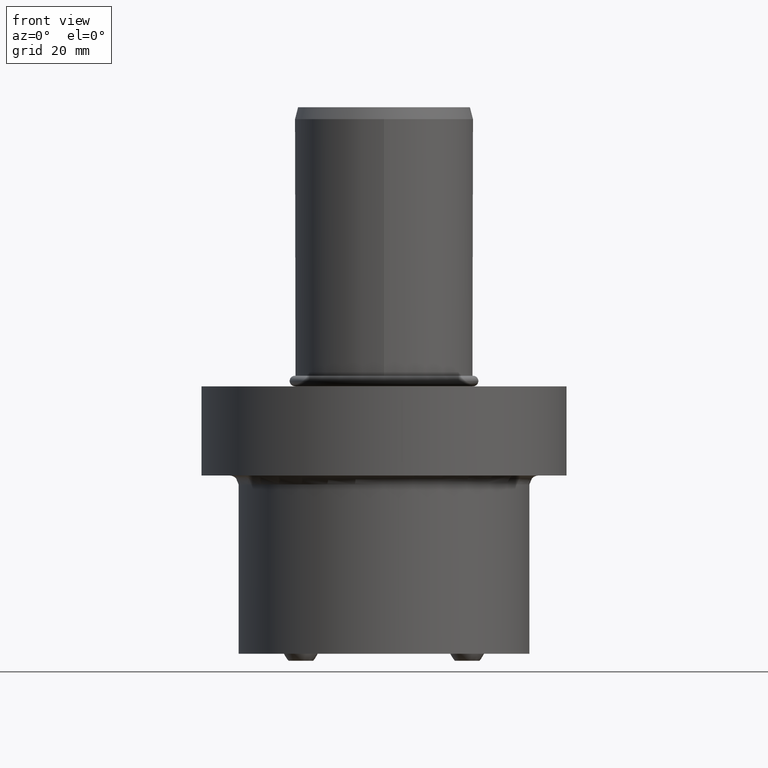
[diagram: clean part render]
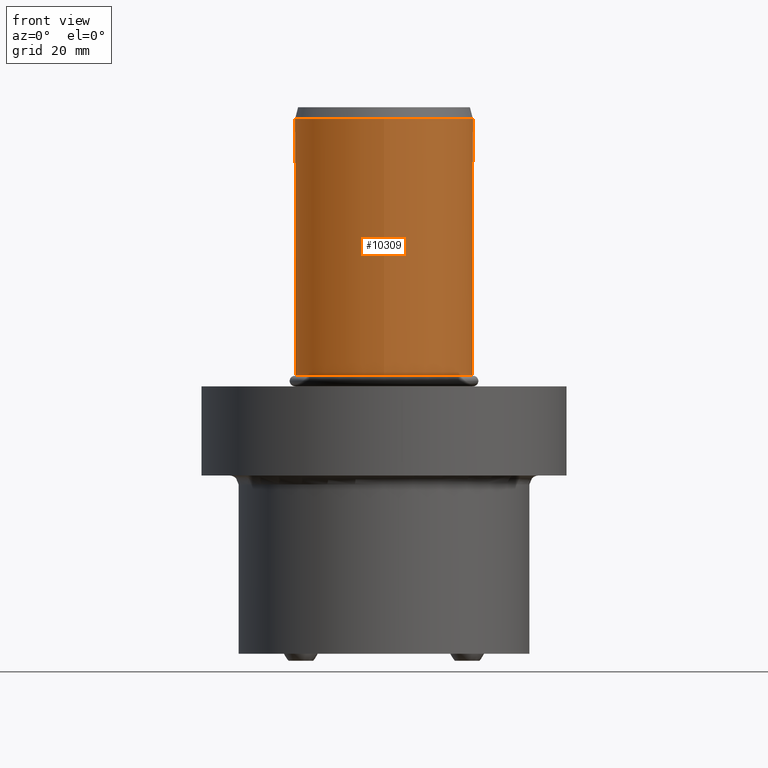
[diagram: same view with one face highlighted and labeled with its STEP entity id]
A machine part, front view. The second image highlights one B-rep face of the part: STEP entity #10309.
In plain terms, the highlighted cylindrical surface (bore or boss wall) has radius 30 mm, axis along (0, 0, 1).
Its self-contained STEP definition (entity closure, byte-faithful):
#7 = CARTESIAN_POINT ( 'NONE',  ( -16.58312395177700083, 25.00000000000000000, 32.00000000000000000 ) ) ;
#70 = CARTESIAN_POINT ( 'NONE',  ( 16.58312395177700083, 25.00000000000000000, 19.40000000000000213 ) ) ;
#77 =( BOUNDED_CURVE ( )  B_SPLINE_CURVE ( 3, ( #10278, #7261, #10489, #9464 ),
 .UNSPECIFIED., .F., .F. ) 
 B_SPLINE_CURVE_WITH_KNOTS ( ( 4, 4 ),
 ( 2.460152996089494781, 2.555907110132641602 ),
 .UNSPECIFIED. ) 
 CURVE ( )  GEOMETRIC_REPRESENTATION_ITEM ( )  RATIONAL_B_SPLINE_CURVE ( ( 1.000000000000000000, 0.9992360750769040401, 0.9992360750769040401, 1.000000000000000000 ) ) 
 REPRESENTATION_ITEM ( '' )  );
#122 = ORIENTED_EDGE ( 'NONE', *, *, #12164, .T. ) ;
#147 = CARTESIAN_POINT ( 'NONE',  ( 16.58312395177700083, 25.00000000000000000, 32.00000000000000000 ) ) ;
#154 =( BOUNDED_CURVE ( )  B_SPLINE_CURVE ( 3, ( #11166, #521, #380, #12161 ),
 .UNSPECIFIED., .F., .F. ) 
 B_SPLINE_CURVE_WITH_KNOTS ( ( 4, 4 ),
 ( 2.460152996089494337, 2.555907110132640714 ),
 .UNSPECIFIED. ) 
 CURVE ( )  GEOMETRIC_REPRESENTATION_ITEM ( )  RATIONAL_B_SPLINE_CURVE ( ( 1.000000000000000000, 0.9992360750769040401, 0.9992360750769040401, 1.000000000000000000 ) ) 
 REPRESENTATION_ITEM ( '' )  );
#177 = EDGE_CURVE ( 'NONE', #6284, #5547, #13821, .T. ) ;
#188 = CARTESIAN_POINT ( 'NONE',  ( 18.89735431217819794, 23.30000000000000071, 25.69999999999999929 ) ) ;
#191 = VERTEX_POINT ( 'NONE', #8512 ) ;
#194 = VERTEX_POINT ( 'NONE', #4172 ) ;
#199 = CARTESIAN_POINT ( 'NONE',  ( 18.89735431217819794, 23.30000000000000071, 49.70000000000000284 ) ) ;
#202 = DIRECTION ( 'NONE',  ( -1.608122649676639805E-16, -1.000000000000000000, 1.224646799147350002E-16 ) ) ;
#222 = ORIENTED_EDGE ( 'NONE', *, *, #12334, .T. ) ;
#237 = VECTOR ( 'NONE', #8080, 1000.000000000000000 ) ;
#247 = EDGE_CURVE ( 'NONE', #895, #13382, #3927, .T. ) ;
#253 = CARTESIAN_POINT ( 'NONE',  ( 16.58312395177700083, 25.00000000000000000, 47.39999999999999858 ) ) ;
#290 = ORIENTED_EDGE ( 'NONE', *, *, #9174, .T. ) ;
#291 = CARTESIAN_POINT ( 'NONE',  ( -18.15337976922586805, 23.90339701877300982, 49.09660298122697242 ) ) ;
#307 = CARTESIAN_POINT ( 'NONE',  ( 18.15337976922588226, 23.90339701877301692, 34.30339701877305458 ) ) ;
#356 = DIRECTION ( 'NONE',  ( -4.440892098500630106E-16, -1.224646799147350002E-16, -1.000000000000000000 ) ) ;
#360 = VECTOR ( 'NONE', #4912, 1000.000000000000000 ) ;
#380 = CARTESIAN_POINT ( 'NONE',  ( -17.38137989915075465, 24.47049690717831183, 60.52950309282168462 ) ) ;
#382 = VERTEX_POINT ( 'NONE', #5444 ) ;
#383 = CARTESIAN_POINT ( 'NONE',  ( 18.89735431217819794, 23.30000000000000071, 49.70000000000000284 ) ) ;
#386 = CARTESIAN_POINT ( 'NONE',  ( 18.89735431217819794, 23.30000000000000071, 21.69999999999999929 ) ) ;
#395 = LINE ( 'NONE', #5762, #5721 ) ;
#422 = CARTESIAN_POINT ( 'NONE',  ( -16.58312395177700083, 25.00000000000000000, 68.00000000000000000 ) ) ;
#461 = VECTOR ( 'NONE', #1812, 1000.000000000000000 ) ;
#479 = CARTESIAN_POINT ( 'NONE',  ( 18.89735431217819794, 23.30000000000000071, 25.69999999999999929 ) ) ;
#486 = VERTEX_POINT ( 'NONE', #3661 ) ;
#496 = VERTEX_POINT ( 'NONE', #8044 ) ;
#505 = VERTEX_POINT ( 'NONE', #5716 ) ;
#521 = CARTESIAN_POINT ( 'NONE',  ( -18.15337976922586449, 23.90339701877300627, 61.09660298122699373 ) ) ;
#543 = CARTESIAN_POINT ( 'NONE',  ( -18.89735431217819794, 23.30000000000000071, 69.70000000000000284 ) ) ;
#553 = DIRECTION ( 'NONE',  ( -4.440892098500630106E-16, -1.224646799147350002E-16, -1.000000000000000000 ) ) ;
#563 = CARTESIAN_POINT ( 'NONE',  ( -16.58312395177700083, 25.00000000000000000, 4.302769414721919835E-15 ) ) ;
#599 = CARTESIAN_POINT ( 'NONE',  ( 16.58312395177700083, 25.00000000000000000, 40.00000000000000000 ) ) ;
#600 = CARTESIAN_POINT ( 'NONE',  ( 18.89735431217819794, 23.30000000000000071, 53.69999999999999574 ) ) ;
#602 = ORIENTED_EDGE ( 'NONE', *, *, #13731, .T. ) ;
#604 =( BOUNDED_CURVE ( )  B_SPLINE_CURVE ( 3, ( #6250, #12514, #2914, #11741 ),
 .UNSPECIFIED., .F., .F. ) 
 B_SPLINE_CURVE_WITH_KNOTS ( ( 4, 4 ),
 ( 3.727278197046943742, 3.823032311090090563 ),
 .UNSPECIFIED. ) 
 CURVE ( )  GEOMETRIC_REPRESENTATION_ITEM ( )  RATIONAL_B_SPLINE_CURVE ( ( 1.000000000000000000, 0.9992360750769040401, 0.9992360750769040401, 1.000000000000000000 ) ) 
 REPRESENTATION_ITEM ( '' )  );
#608 = EDGE_CURVE ( 'NONE', #12775, #12312, #7758, .T. ) ;
#610 = VERTEX_POINT ( 'NONE', #6260 ) ;
#635 = CARTESIAN_POINT ( 'NONE',  ( 16.58312395177700083, 25.00000000000000000, -1.042600341045870012E-14 ) ) ;
#653 = EDGE_CURVE ( 'NONE', #13478, #11015, #7230, .T. ) ;
#666 = EDGE_CURVE ( 'NONE', #6160, #7348, #7852, .T. ) ;
#667 = CARTESIAN_POINT ( 'NONE',  ( 16.58312395177700083, 25.00000000000000000, -1.042600341045870012E-14 ) ) ;
#689 =( BOUNDED_CURVE ( )  B_SPLINE_CURVE ( 3, ( #3817, #1527, #3688, #383 ),
 .UNSPECIFIED., .F., .F. ) 
 B_SPLINE_CURVE_WITH_KNOTS ( ( 4, 4 ),
 ( 3.727278197046943742, 3.823032311090090563 ),
 .UNSPECIFIED. ) 
 CURVE ( )  GEOMETRIC_REPRESENTATION_ITEM ( )  RATIONAL_B_SPLINE_CURVE ( ( 1.000000000000000000, 0.9992360750769040401, 0.9992360750769040401, 1.000000000000000000 ) ) 
 REPRESENTATION_ITEM ( '' )  );
#717 = CARTESIAN_POINT ( 'NONE',  ( 17.38137989915075821, 24.47049690717832959, 16.52950309282163488 ) ) ;
#763 = CARTESIAN_POINT ( 'NONE',  ( 18.89735431217819794, 23.30000000000000071, 45.69999999999999574 ) ) ;
#767 = ORIENTED_EDGE ( 'NONE', *, *, #653, .T. ) ;
#771 = ORIENTED_EDGE ( 'NONE', *, *, #608, .T. ) ;
#784 = VERTEX_POINT ( 'NONE', #9350 ) ;
#814 = CARTESIAN_POINT ( 'NONE',  ( -18.15337976922586805, 23.90339701877300627, 29.09660298122696886 ) ) ;
#860 = CARTESIAN_POINT ( 'NONE',  ( 16.58312395177700083, 25.00000000000000000, 51.39999999999999858 ) ) ;
#895 = VERTEX_POINT ( 'NONE', #4633 ) ;
#906 = CARTESIAN_POINT ( 'NONE',  ( 16.58312395177710030, 25.00000000000000000, 90.00000000000000000 ) ) ;
#946 = CARTESIAN_POINT ( 'NONE',  ( 18.89735431217819794, 23.30000000000000071, 29.69999999999999929 ) ) ;
#963 = LINE ( 'NONE', #11528, #4485 ) ;
#983 = CARTESIAN_POINT ( 'NONE',  ( -16.58312395177700083, 25.00000000000000000, 48.00000000000000000 ) ) ;
#999 = CARTESIAN_POINT ( 'NONE',  ( 18.89735431217819794, 23.30000000000000071, 57.70000000000000284 ) ) ;
#1000 = DIRECTION ( 'NONE',  ( 4.440892098500630106E-16, 1.224646799147350002E-16, 1.000000000000000000 ) ) ;
#1008 = CARTESIAN_POINT ( 'NONE',  ( -18.89735431217819794, 23.30000000000000071, 33.70000000000000284 ) ) ;
#1021 = EDGE_CURVE ( 'NONE', #6689, #3226, #12728, .T. ) ;
#1032 = CARTESIAN_POINT ( 'NONE',  ( -16.58312395177700083, 25.00000000000000000, 4.302769414721919835E-15 ) ) ;
#1066 = CARTESIAN_POINT ( 'NONE',  ( 16.58312395177700083, 25.00000000000000000, 56.00000000000000000 ) ) ;
#1075 = CARTESIAN_POINT ( 'NONE',  ( -18.15337976922586094, 23.90339701877301337, 18.30339701877305103 ) ) ;
#1078 =( BOUNDED_CURVE ( )  B_SPLINE_CURVE ( 3, ( #11469, #11754, #7185, #13788 ),
 .UNSPECIFIED., .F., .F. ) 
 B_SPLINE_CURVE_WITH_KNOTS ( ( 4, 4 ),
 ( 2.460152996089494781, 2.555907110132641602 ),
 .UNSPECIFIED. ) 
 CURVE ( )  GEOMETRIC_REPRESENTATION_ITEM ( )  RATIONAL_B_SPLINE_CURVE ( ( 1.000000000000000000, 0.9992360750769040401, 0.9992360750769040401, 1.000000000000000000 ) ) 
 REPRESENTATION_ITEM ( '' )  );
#1102 = EDGE_CURVE ( 'NONE', #382, #2971, #11710, .T. ) ;
#1111 = CARTESIAN_POINT ( 'NONE',  ( 18.15337976922588936, 23.90339701877303469, 70.30339701877305458 ) ) ;
#1167 =( BOUNDED_CURVE ( )  B_SPLINE_CURVE ( 3, ( #12468, #11407, #10354, #763 ),
 .UNSPECIFIED., .F., .F. ) 
 B_SPLINE_CURVE_WITH_KNOTS ( ( 4, 4 ),
 ( 3.727278197046943742, 3.823032311090090563 ),
 .UNSPECIFIED. ) 
 CURVE ( )  GEOMETRIC_REPRESENTATION_ITEM ( )  RATIONAL_B_SPLINE_CURVE ( ( 1.000000000000000000, 0.9992360750769040401, 0.9992360750769040401, 1.000000000000000000 ) ) 
 REPRESENTATION_ITEM ( '' )  );
#1191 = CARTESIAN_POINT ( 'NONE',  ( -16.58312395177700083, 25.00000000000000000, 39.39999999999999858 ) ) ;
#1276 = ORIENTED_EDGE ( 'NONE', *, *, #12349, .T. ) ;
#1287 = CARTESIAN_POINT ( 'NONE',  ( -18.15337976922586449, 23.90339701877300271, 54.30339701877303327 ) ) ;
#1313 = VERTEX_POINT ( 'NONE', #1066 ) ;
#1329 = CARTESIAN_POINT ( 'NONE',  ( 16.58312395177700083, 25.00000000000000000, 59.39999999999999858 ) ) ;
#1334 = VECTOR ( 'NONE', #11243, 1000.000000000000000 ) ;
#1364 = CARTESIAN_POINT ( 'NONE',  ( -18.89735431217819794, 23.30000000000000071, 17.69999999999999929 ) ) ;
#1372 = DIRECTION ( 'NONE',  ( -4.440892098500630106E-16, -1.224646799147350002E-16, -1.000000000000000000 ) ) ;
#1436 = DIRECTION ( 'NONE',  ( 4.440892098500630106E-16, 1.224646799147350002E-16, 1.000000000000000000 ) ) ;
#1452 = CARTESIAN_POINT ( 'NONE',  ( 17.38137989915076531, 24.47049690717832604, 34.87049690717835659 ) ) ;
#1486 = CARTESIAN_POINT ( 'NONE',  ( 18.89735431217819794, 23.30000000000000071, 61.69999999999999574 ) ) ;
#1501 = ORIENTED_EDGE ( 'NONE', *, *, #5566, .T. ) ;
#1527 = CARTESIAN_POINT ( 'NONE',  ( 17.38137989915076531, 24.47049690717834025, 48.52950309282163488 ) ) ;
#1528 =( BOUNDED_CURVE ( )  B_SPLINE_CURVE ( 3, ( #7594, #1111, #2300, #10692 ),
 .UNSPECIFIED., .F., .F. ) 
 B_SPLINE_CURVE_WITH_KNOTS ( ( 4, 4 ),
 ( 2.460152996089496114, 2.555907110132642934 ),
 .UNSPECIFIED. ) 
 CURVE ( )  GEOMETRIC_REPRESENTATION_ITEM ( )  RATIONAL_B_SPLINE_CURVE ( ( 1.000000000000000000, 0.9992360750769040401, 0.9992360750769040401, 1.000000000000000000 ) ) 
 REPRESENTATION_ITEM ( '' )  );
#1530 = DIRECTION ( 'NONE',  ( 4.440892098500630106E-16, 1.224646799147350002E-16, 1.000000000000000000 ) ) ;
#1562 = EDGE_CURVE ( 'NONE', #2254, #2301, #77, .T. ) ;
#1567 = VERTEX_POINT ( 'NONE', #3976 ) ;
#1574 = VECTOR ( 'NONE', #5559, 1000.000000000000000 ) ;
#1610 =( BOUNDED_CURVE ( )  B_SPLINE_CURVE ( 3, ( #9615, #5224, #2437, #8466 ),
 .UNSPECIFIED., .F., .F. ) 
 B_SPLINE_CURVE_WITH_KNOTS ( ( 4, 4 ),
 ( 3.727278197046945518, 3.823032311090091895 ),
 .UNSPECIFIED. ) 
 CURVE ( )  GEOMETRIC_REPRESENTATION_ITEM ( )  RATIONAL_B_SPLINE_CURVE ( ( 1.000000000000000000, 0.9992360750769040401, 0.9992360750769040401, 1.000000000000000000 ) ) 
 REPRESENTATION_ITEM ( '' )  );
#1680 = ORIENTED_EDGE ( 'NONE', *, *, #9841, .T. ) ;
#1712 = CARTESIAN_POINT ( 'NONE',  ( -16.58312395177700083, 25.00000000000000000, 27.40000000000000213 ) ) ;
#1773 = VERTEX_POINT ( 'NONE', #10978 ) ;
#1787 = AXIS2_PLACEMENT_3D ( 'NONE', #12357, #4842, #7012 ) ;
#1812 = DIRECTION ( 'NONE',  ( 4.440892098500630106E-16, 1.224646799147350002E-16, 1.000000000000000000 ) ) ;
#1816 = EDGE_CURVE ( 'NONE', #12402, #3647, #6313, .T. ) ;
#1858 = EDGE_CURVE ( 'NONE', #13356, #7477, #4390, .T. ) ;
#1859 = VERTEX_POINT ( 'NONE', #9370 ) ;
#1901 = VECTOR ( 'NONE', #12404, 1000.000000000000000 ) ;
#1904 = ORIENTED_EDGE ( 'NONE', *, *, #9881, .T. ) ;
#1925 = CARTESIAN_POINT ( 'NONE',  ( 18.89735431217819794, 23.30000000000000071, 65.69999999999998863 ) ) ;
#1971 = ORIENTED_EDGE ( 'NONE', *, *, #3479, .T. ) ;
#1995 = CARTESIAN_POINT ( 'NONE',  ( -16.58312395177700083, 25.00000000000000000, 31.39999999999999858 ) ) ;
#2020 = LINE ( 'NONE', #5053, #2043 ) ;
#2043 = VECTOR ( 'NONE', #8153, 1000.000000000000000 ) ;
#2067 =( BOUNDED_CURVE ( )  B_SPLINE_CURVE ( 3, ( #3453, #8826, #7696, #12001 ),
 .UNSPECIFIED., .F., .F. ) 
 B_SPLINE_CURVE_WITH_KNOTS ( ( 4, 4 ),
 ( 2.460152996089495669, 2.555907110132642490 ),
 .UNSPECIFIED. ) 
 CURVE ( )  GEOMETRIC_REPRESENTATION_ITEM ( )  RATIONAL_B_SPLINE_CURVE ( ( 1.000000000000000000, 0.9992360750769040401, 0.9992360750769040401, 1.000000000000000000 ) ) 
 REPRESENTATION_ITEM ( '' )  );
#2069 = CARTESIAN_POINT ( 'NONE',  ( -18.15337976922586805, 23.90339701877300627, 33.09660298122697952 ) ) ;
#2093 = CARTESIAN_POINT ( 'NONE',  ( -18.89735431217819794, 23.30000000000000071, 41.70000000000000284 ) ) ;
#2102 = VERTEX_POINT ( 'NONE', #3191 ) ;
#2106 = VERTEX_POINT ( 'NONE', #2285 ) ;
#2113 = CARTESIAN_POINT ( 'NONE',  ( -18.89735431217819794, 23.30000000000000071, 57.70000000000000284 ) ) ;
#2117 = CARTESIAN_POINT ( 'NONE',  ( 18.89735431217819794, 23.30000000000000071, 69.70000000000000284 ) ) ;
#2136 = CARTESIAN_POINT ( 'NONE',  ( -16.58312395177700083, 25.00000000000000000, 19.40000000000000213 ) ) ;
#2148 =( BOUNDED_CURVE ( )  B_SPLINE_CURVE ( 3, ( #5001, #13565, #13861, #12820 ),
 .UNSPECIFIED., .F., .F. ) 
 B_SPLINE_CURVE_WITH_KNOTS ( ( 4, 4 ),
 ( 3.727278197046945518, 3.823032311090091895 ),
 .UNSPECIFIED. ) 
 CURVE ( )  GEOMETRIC_REPRESENTATION_ITEM ( )  RATIONAL_B_SPLINE_CURVE ( ( 1.000000000000000000, 0.9992360750769040401, 0.9992360750769040401, 1.000000000000000000 ) ) 
 REPRESENTATION_ITEM ( '' )  );
#2149 = VERTEX_POINT ( 'NONE', #11652 ) ;
#2154 = VERTEX_POINT ( 'NONE', #7913 ) ;
#2238 = CARTESIAN_POINT ( 'NONE',  ( -16.58312395177700083, 25.00000000000000000, 4.302769414721919835E-15 ) ) ;
#2254 = VERTEX_POINT ( 'NONE', #7140 ) ;
#2284 = EDGE_CURVE ( 'NONE', #10429, #12206, #5091, .T. ) ;
#2285 = CARTESIAN_POINT ( 'NONE',  ( 16.58312395177700083, 25.00000000000000000, 52.00000000000000000 ) ) ;
#2300 = CARTESIAN_POINT ( 'NONE',  ( 17.38137989915076886, 24.47049690717834380, 70.87049690717836370 ) ) ;
#2301 = VERTEX_POINT ( 'NONE', #8409 ) ;
#2312 = CARTESIAN_POINT ( 'NONE',  ( -16.58312395177700083, 25.00000000000000000, 4.302769414721919835E-15 ) ) ;
#2347 = CARTESIAN_POINT ( 'NONE',  ( -17.38137989915075465, 24.47049690717831538, 48.52950309282167751 ) ) ;
#2348 = CARTESIAN_POINT ( 'NONE',  ( -18.89735431217819794, 23.30000000000000071, 69.70000000000000284 ) ) ;
#2356 = CARTESIAN_POINT ( 'NONE',  ( -16.58312395177700083, 25.00000000000000000, 43.39999999999999858 ) ) ;
#2397 = ORIENTED_EDGE ( 'NONE', *, *, #9394, .T. ) ;
#2426 = CARTESIAN_POINT ( 'NONE',  ( 18.15337976922587870, 23.90339701877302403, 37.09660298122692978 ) ) ;
#2437 = CARTESIAN_POINT ( 'NONE',  ( -18.15337976922586805, 23.90339701877300271, 46.30339701877304748 ) ) ;
#2449 = EDGE_CURVE ( 'NONE', #13409, #5758, #13053, .T. ) ;
#2480 = EDGE_CURVE ( 'NONE', #9039, #6284, #9295, .T. ) ;
#2512 =( BOUNDED_CURVE ( )  B_SPLINE_CURVE ( 3, ( #7938, #5552, #13211, #9995 ),
 .UNSPECIFIED., .F., .F. ) 
 B_SPLINE_CURVE_WITH_KNOTS ( ( 4, 4 ),
 ( 3.727278197046945074, 3.823032311090091895 ),
 .UNSPECIFIED. ) 
 CURVE ( )  GEOMETRIC_REPRESENTATION_ITEM ( )  RATIONAL_B_SPLINE_CURVE ( ( 1.000000000000000000, 0.9992360750769040401, 0.9992360750769040401, 1.000000000000000000 ) ) 
 REPRESENTATION_ITEM ( '' )  );
#2513 = EDGE_CURVE ( 'NONE', #2106, #13444, #7394, .T. ) ;
#2564 = EDGE_CURVE ( 'NONE', #2102, #2582, #963, .T. ) ;
#2567 = LINE ( 'NONE', #13140, #1334 ) ;
#2582 = VERTEX_POINT ( 'NONE', #12376 ) ;
#2614 = CARTESIAN_POINT ( 'NONE',  ( 16.58312395177700083, 25.00000000000000000, -1.042600341045870012E-14 ) ) ;
#2633 = EDGE_CURVE ( 'NONE', #7817, #8819, #11386, .T. ) ;
#2636 = CARTESIAN_POINT ( 'NONE',  ( 6.218671481916372201, 31.87500000000002132, 7.124999999999936051 ) ) ;
#2646 = ORIENTED_EDGE ( 'NONE', *, *, #5040, .T. ) ;
#2651 = CARTESIAN_POINT ( 'NONE',  ( -17.38137989915075110, 24.47049690717831538, 44.52950309282167751 ) ) ;
#2653 = EDGE_CURVE ( 'NONE', #4180, #13191, #2020, .T. ) ;
#2687 = CARTESIAN_POINT ( 'NONE',  ( 16.58312395177700083, 25.00000000000000000, 60.00000000000000000 ) ) ;
#2712 = CARTESIAN_POINT ( 'NONE',  ( 16.58312395177700083, 25.00000000000000000, 39.39999999999999858 ) ) ;
#2719 = DIRECTION ( 'NONE',  ( -4.440892098500630106E-16, -1.224646799147350002E-16, -1.000000000000000000 ) ) ;
#2745 = LINE ( 'NONE', #6925, #3606 ) ;
#2772 = CARTESIAN_POINT ( 'NONE',  ( 16.58312395177700083, 25.00000000000000000, -1.042600341045870012E-14 ) ) ;
#2792 = DIRECTION ( 'NONE',  ( -4.440892098500630106E-16, -1.224646799147350002E-16, -1.000000000000000000 ) ) ;
#2794 = VECTOR ( 'NONE', #10434, 1000.000000000000000 ) ;
#2817 = DIRECTION ( 'NONE',  ( 4.440892098500630106E-16, 1.224646799147350002E-16, 1.000000000000000000 ) ) ;
#2833 = LINE ( 'NONE', #10725, #3504 ) ;
#2859 = EDGE_CURVE ( 'NONE', #610, #13409, #13133, .T. ) ;
#2869 = ORIENTED_EDGE ( 'NONE', *, *, #2859, .T. ) ;
#2914 = CARTESIAN_POINT ( 'NONE',  ( 18.15337976922588226, 23.90339701877303114, 57.09660298122693689 ) ) ;
#2951 = CARTESIAN_POINT ( 'NONE',  ( 18.15337976922588226, 23.90339701877302758, 54.30339701877304748 ) ) ;
#2955 =( BOUNDED_CURVE ( )  B_SPLINE_CURVE ( 3, ( #4695, #3657, #11133, #10154 ),
 .UNSPECIFIED., .F., .F. ) 
 B_SPLINE_CURVE_WITH_KNOTS ( ( 4, 4 ),
 ( 3.727278197046943742, 3.823032311090090118 ),
 .UNSPECIFIED. ) 
 CURVE ( )  GEOMETRIC_REPRESENTATION_ITEM ( )  RATIONAL_B_SPLINE_CURVE ( ( 1.000000000000000000, 0.9992360750769040401, 0.9992360750769040401, 1.000000000000000000 ) ) 
 REPRESENTATION_ITEM ( '' )  );
#2961 = CARTESIAN_POINT ( 'NONE',  ( 16.58312395177700083, 25.00000000000000000, -1.042600341045870012E-14 ) ) ;
#2971 = VERTEX_POINT ( 'NONE', #7854 ) ;
#3022 = CARTESIAN_POINT ( 'NONE',  ( 18.89735431217819794, 23.30000000000000071, 45.69999999999999574 ) ) ;
#3030 = CARTESIAN_POINT ( 'NONE',  ( 16.58312395177700083, 25.00000000000000000, -1.042600341045870012E-14 ) ) ;
#3037 =( BOUNDED_CURVE ( )  B_SPLINE_CURVE ( 3, ( #9885, #7525, #6322, #3423 ),
 .UNSPECIFIED., .F., .F. ) 
 B_SPLINE_CURVE_WITH_KNOTS ( ( 4, 4 ),
 ( 3.727278197046944186, 3.823032311090091007 ),
 .UNSPECIFIED. ) 
 CURVE ( )  GEOMETRIC_REPRESENTATION_ITEM ( )  RATIONAL_B_SPLINE_CURVE ( ( 1.000000000000000000, 0.9992360750769040401, 0.9992360750769040401, 1.000000000000000000 ) ) 
 REPRESENTATION_ITEM ( '' )  );
#3088 = VERTEX_POINT ( 'NONE', #10173 ) ;
#3115 = CARTESIAN_POINT ( 'NONE',  ( -16.58312395177700083, 25.00000000000000000, 51.39999999999999858 ) ) ;
#3118 = CARTESIAN_POINT ( 'NONE',  ( -16.58312395177700083, 25.00000000000000000, 56.00000000000000000 ) ) ;
#3137 = VECTOR ( 'NONE', #3890, 1000.000000000000000 ) ;
#3166 = ORIENTED_EDGE ( 'NONE', *, *, #4614, .T. ) ;
#3175 = DIRECTION ( 'NONE',  ( -4.440892098500630106E-16, -1.224646799147350002E-16, -1.000000000000000000 ) ) ;
#3191 = CARTESIAN_POINT ( 'NONE',  ( 16.58312395177700083, 25.00000000000000000, 27.40000000000000213 ) ) ;
#3226 = VERTEX_POINT ( 'NONE', #6226 ) ;
#3242 = CARTESIAN_POINT ( 'NONE',  ( -16.58312395177700083, 25.00000000000000000, 4.302769414721919835E-15 ) ) ;
#3252 = EDGE_CURVE ( 'NONE', #12673, #505, #10252, .T. ) ;
#3287 = LINE ( 'NONE', #2238, #9683 ) ;
#3311 = CARTESIAN_POINT ( 'NONE',  ( 18.89735431217819794, 23.30000000000000071, 17.69999999999999929 ) ) ;
#3334 = ORIENTED_EDGE ( 'NONE', *, *, #6428, .F. ) ;
#3366 = CARTESIAN_POINT ( 'NONE',  ( 18.15337976922587160, 23.90339701877302403, 25.09660298122694044 ) ) ;
#3369 = VERTEX_POINT ( 'NONE', #13757 ) ;
#3372 = CARTESIAN_POINT ( 'NONE',  ( 18.15337976922587870, 23.90339701877302758, 50.30339701877306169 ) ) ;
#3401 = CARTESIAN_POINT ( 'NONE',  ( -16.58312395177700083, 25.00000000000000000, 47.39999999999999858 ) ) ;
#3423 = CARTESIAN_POINT ( 'NONE',  ( 18.89735431217819794, 23.30000000000000071, 21.69999999999999929 ) ) ;
#3426 = CARTESIAN_POINT ( 'NONE',  ( 17.38137989915077242, 24.47049690717832959, 46.87049690717834949 ) ) ;
#3451 = CARTESIAN_POINT ( 'NONE',  ( -16.58312395177700083, 25.00000000000000000, 23.40000000000000213 ) ) ;
#3453 = CARTESIAN_POINT ( 'NONE',  ( 18.89735431217819794, 23.30000000000000071, 41.70000000000000284 ) ) ;
#3466 = EDGE_CURVE ( 'NONE', #7623, #9751, #5335, .T. ) ;
#3479 = EDGE_CURVE ( 'NONE', #11015, #3725, #12983, .T. ) ;
#3489 = EDGE_CURVE ( 'NONE', #784, #11769, #6400, .T. ) ;
#3494 =( BOUNDED_CURVE ( )  B_SPLINE_CURVE ( 3, ( #3311, #10721, #12628, #70 ),
 .UNSPECIFIED., .F., .F. ) 
 B_SPLINE_CURVE_WITH_KNOTS ( ( 4, 4 ),
 ( 2.460152996089495669, 2.555907110132642046 ),
 .UNSPECIFIED. ) 
 CURVE ( )  GEOMETRIC_REPRESENTATION_ITEM ( )  RATIONAL_B_SPLINE_CURVE ( ( 1.000000000000000000, 0.9992360750769040401, 0.9992360750769040401, 1.000000000000000000 ) ) 
 REPRESENTATION_ITEM ( '' )  );
#3504 = VECTOR ( 'NONE', #7492, 1000.000000000000000 ) ;
#3507 = ORIENTED_EDGE ( 'NONE', *, *, #10458, .T. ) ;
#3512 = CARTESIAN_POINT ( 'NONE',  ( 0.000000000000000000, 0.000000000000000000, 0.000000000000000000 ) ) ;
#3518 = CARTESIAN_POINT ( 'NONE',  ( 17.38137989915077242, 24.47049690717832959, 58.87049690717836370 ) ) ;
#3532 = CARTESIAN_POINT ( 'NONE',  ( -18.89735431217819794, 23.30000000000000071, 49.70000000000000284 ) ) ;
#3553 = EDGE_CURVE ( 'NONE', #12330, #8729, #12078, .T. ) ;
#3568 =( BOUNDED_CURVE ( )  B_SPLINE_CURVE ( 3, ( #13596, #717, #11506, #9420 ),
 .UNSPECIFIED., .F., .F. ) 
 B_SPLINE_CURVE_WITH_KNOTS ( ( 4, 4 ),
 ( 3.727278197046944186, 3.823032311090091007 ),
 .UNSPECIFIED. ) 
 CURVE ( )  GEOMETRIC_REPRESENTATION_ITEM ( )  RATIONAL_B_SPLINE_CURVE ( ( 1.000000000000000000, 0.9992360750769040401, 0.9992360750769040401, 1.000000000000000000 ) ) 
 REPRESENTATION_ITEM ( '' )  );
#3571 = DIRECTION ( 'NONE',  ( -4.440892098500630106E-16, -1.224646799147350002E-16, -1.000000000000000000 ) ) ;
#3600 = CARTESIAN_POINT ( 'NONE',  ( -17.38137989915075110, 24.47049690717831183, 68.52950309282167041 ) ) ;
#3606 = VECTOR ( 'NONE', #9259, 1000.000000000000000 ) ;
#3623 = CARTESIAN_POINT ( 'NONE',  ( 16.58312395177700083, 25.00000000000000000, 35.39999999999999858 ) ) ;
#3640 = EDGE_LOOP ( 'NONE', ( #3334, #6891, #9525, #6672, #5511, #3665, #11918, #2397, #5765, #1501, #8127, #2869, #10877, #12406, #12652, #771, #12165, #9051, #12004, #13292, #6219, #3507, #3981, #1680, #7876, #122, #9672, #8097, #602, #4551, #2646, #4476, #12773, #13654, #11326, #290, #13221, #10920, #3952, #12071, #1904, #8505, #8562, #12123, #10085, #3936, #8398, #3166, #4835, #7361, #9129, #13307, #4956, #4677, #13561, #9901, #222, #13155, #5857, #6471, #9993, #5641, #9335, #6469, #5969, #12002, #11262, #6201, #8547, #4764, #3803, #4974, #8360, #8201, #1276, #10890, #5711, #12848, #13531, #6711, #4674, #6751, #9489, #767, #1971, #4349, #9459, #7562 ) ) ;
#3647 = VERTEX_POINT ( 'NONE', #8185 ) ;
#3657 = CARTESIAN_POINT ( 'NONE',  ( 17.38137989915076886, 24.47049690717834025, 64.52950309282162777 ) ) ;
#3661 = CARTESIAN_POINT ( 'NONE',  ( 16.58312395177700083, 25.00000000000000000, 35.39999999999999858 ) ) ;
#3665 = ORIENTED_EDGE ( 'NONE', *, *, #10971, .T. ) ;
#3666 = CARTESIAN_POINT ( 'NONE',  ( -16.58312395177700083, 25.00000000000000000, 4.302769414721919835E-15 ) ) ;
#3688 = CARTESIAN_POINT ( 'NONE',  ( 18.15337976922587870, 23.90339701877303114, 49.09660298122692268 ) ) ;
#3725 = VERTEX_POINT ( 'NONE', #9693 ) ;
#3742 = CARTESIAN_POINT ( 'NONE',  ( -16.58312395177700083, 25.00000000000000000, 28.00000000000000000 ) ) ;
#3761 = CARTESIAN_POINT ( 'NONE',  ( 18.89735431217819794, 23.30000000000000071, 57.70000000000000284 ) ) ;
#3795 = EDGE_CURVE ( 'NONE', #4992, #12775, #8675, .T. ) ;
#3803 = ORIENTED_EDGE ( 'NONE', *, *, #13170, .T. ) ;
#3806 = CARTESIAN_POINT ( 'NONE',  ( -16.58312395177700083, 25.00000000000000000, 27.40000000000000213 ) ) ;
#3817 = CARTESIAN_POINT ( 'NONE',  ( 16.58312395177700083, 25.00000000000000000, 48.00000000000000000 ) ) ;
#3831 = LINE ( 'NONE', #5906, #3956 ) ;
#3867 = EDGE_CURVE ( 'NONE', #7477, #6160, #4968, .T. ) ;
#3878 = CARTESIAN_POINT ( 'NONE',  ( 16.58312395177700083, 25.00000000000000000, -1.042600341045870012E-14 ) ) ;
#3890 = DIRECTION ( 'NONE',  ( -4.440892098500630106E-16, -1.224646799147350002E-16, -1.000000000000000000 ) ) ;
#3922 = VERTEX_POINT ( 'NONE', #6165 ) ;
#3927 =( BOUNDED_CURVE ( )  B_SPLINE_CURVE ( 3, ( #2093, #6316, #10617, #12659 ),
 .UNSPECIFIED., .F., .F. ) 
 B_SPLINE_CURVE_WITH_KNOTS ( ( 4, 4 ),
 ( 2.460152996089494781, 2.555907110132641158 ),
 .UNSPECIFIED. ) 
 CURVE ( )  GEOMETRIC_REPRESENTATION_ITEM ( )  RATIONAL_B_SPLINE_CURVE ( ( 1.000000000000000000, 0.9992360750769040401, 0.9992360750769040401, 1.000000000000000000 ) ) 
 REPRESENTATION_ITEM ( '' )  );
#3936 = ORIENTED_EDGE ( 'NONE', *, *, #6410, .T. ) ;
#3952 = ORIENTED_EDGE ( 'NONE', *, *, #9454, .T. ) ;
#3956 = VECTOR ( 'NONE', #3571, 1000.000000000000000 ) ;
#3976 = CARTESIAN_POINT ( 'NONE',  ( 16.58312395177700083, 25.00000000000000000, 47.39999999999999858 ) ) ;
#3981 = ORIENTED_EDGE ( 'NONE', *, *, #4483, .T. ) ;
#3988 = CARTESIAN_POINT ( 'NONE',  ( 16.58312395177700083, 25.00000000000000000, -1.042600341045870012E-14 ) ) ;
#4000 = CARTESIAN_POINT ( 'NONE',  ( -18.89735431217819794, 23.30000000000000071, 25.69999999999999929 ) ) ;
#4006 =( BOUNDED_CURVE ( )  B_SPLINE_CURVE ( 3, ( #5595, #8265, #10096, #10228 ),
 .UNSPECIFIED., .F., .F. ) 
 B_SPLINE_CURVE_WITH_KNOTS ( ( 4, 4 ),
 ( 2.460152996089494337, 2.555907110132640714 ),
 .UNSPECIFIED. ) 
 CURVE ( )  GEOMETRIC_REPRESENTATION_ITEM ( )  RATIONAL_B_SPLINE_CURVE ( ( 1.000000000000000000, 0.9992360750769040401, 0.9992360750769040401, 1.000000000000000000 ) ) 
 REPRESENTATION_ITEM ( '' )  );
#4172 = CARTESIAN_POINT ( 'NONE',  ( -18.89735431217819794, 23.30000000000000071, 21.69999999999999929 ) ) ;
#4180 = VERTEX_POINT ( 'NONE', #6391 ) ;
#4181 = CARTESIAN_POINT ( 'NONE',  ( -18.15337976922586449, 23.90339701877300982, 53.09660298122697242 ) ) ;
#4230 = VECTOR ( 'NONE', #10546, 1000.000000000000000 ) ;
#4269 = VECTOR ( 'NONE', #553, 1000.000000000000000 ) ;
#4291 = CARTESIAN_POINT ( 'NONE',  ( -18.15337976922585739, 23.90339701877300982, 30.30339701877304748 ) ) ;
#4294 = CARTESIAN_POINT ( 'NONE',  ( -17.38137989915075110, 24.47049690717832249, 18.87049690717835304 ) ) ;
#4306 = CARTESIAN_POINT ( 'NONE',  ( -17.38137989915075110, 24.47049690717831538, 38.87049690717834238 ) ) ;
#4330 = CARTESIAN_POINT ( 'NONE',  ( -18.15337976922586805, 23.90339701877300982, 21.09660298122696886 ) ) ;
#4333 = EDGE_CURVE ( 'NONE', #9769, #10935, #13489, .T. ) ;
#4349 = ORIENTED_EDGE ( 'NONE', *, *, #11346, .T. ) ;
#4356 = CARTESIAN_POINT ( 'NONE',  ( -18.15337976922586449, 23.90339701877300627, 37.09660298122697242 ) ) ;
#4360 = VECTOR ( 'NONE', #8905, 1000.000000000000000 ) ;
#4390 =( BOUNDED_CURVE ( )  B_SPLINE_CURVE ( 3, ( #13624, #9789, #12804, #6249 ),
 .UNSPECIFIED., .F., .F. ) 
 B_SPLINE_CURVE_WITH_KNOTS ( ( 4, 4 ),
 ( 3.727278197046943742, 3.823032311090090118 ),
 .UNSPECIFIED. ) 
 CURVE ( )  GEOMETRIC_REPRESENTATION_ITEM ( )  RATIONAL_B_SPLINE_CURVE ( ( 1.000000000000000000, 0.9992360750769040401, 0.9992360750769040401, 1.000000000000000000 ) ) 
 REPRESENTATION_ITEM ( '' )  );
#4393 = EDGE_CURVE ( 'NONE', #10731, #7623, #10095, .T. ) ;
#4417 = VERTEX_POINT ( 'NONE', #3401 ) ;
#4432 = VECTOR ( 'NONE', #1436, 1000.000000000000000 ) ;
#4447 = EDGE_CURVE ( 'NONE', #496, #3369, #10183, .T. ) ;
#4466 =( BOUNDED_CURVE ( )  B_SPLINE_CURVE ( 3, ( #6947, #307, #1452, #3623 ),
 .UNSPECIFIED., .F., .F. ) 
 B_SPLINE_CURVE_WITH_KNOTS ( ( 4, 4 ),
 ( 2.460152996089495669, 2.555907110132642490 ),
 .UNSPECIFIED. ) 
 CURVE ( )  GEOMETRIC_REPRESENTATION_ITEM ( )  RATIONAL_B_SPLINE_CURVE ( ( 1.000000000000000000, 0.9992360750769040401, 0.9992360750769040401, 1.000000000000000000 ) ) 
 REPRESENTATION_ITEM ( '' )  );
#4476 = ORIENTED_EDGE ( 'NONE', *, *, #11887, .T. ) ;
#4483 = EDGE_CURVE ( 'NONE', #5584, #9557, #8979, .T. ) ;
#4485 = VECTOR ( 'NONE', #13780, 1000.000000000000000 ) ;
#4524 = CARTESIAN_POINT ( 'NONE',  ( 16.58312395177700083, 25.00000000000000000, 36.00000000000000000 ) ) ;
#4532 = CARTESIAN_POINT ( 'NONE',  ( -18.89735431217819794, 23.30000000000000071, 29.69999999999999929 ) ) ;
#4551 = ORIENTED_EDGE ( 'NONE', *, *, #3553, .T. ) ;
#4572 = EDGE_CURVE ( 'NONE', #486, #382, #7557, .T. ) ;
#4583 = CARTESIAN_POINT ( 'NONE',  ( 17.38137989915076531, 24.47049690717833315, 36.52950309282162777 ) ) ;
#4604 = CARTESIAN_POINT ( 'NONE',  ( 18.89735431217819794, 23.30000000000000071, 37.69999999999999574 ) ) ;
#4606 = CARTESIAN_POINT ( 'NONE',  ( 16.58312395177700083, 25.00000000000000000, 52.00000000000000000 ) ) ;
#4608 = CIRCLE ( 'NONE', #12439, 30.00000000000000000 ) ;
#4614 = EDGE_CURVE ( 'NONE', #5174, #4180, #3494, .T. ) ;
#4633 = CARTESIAN_POINT ( 'NONE',  ( -18.89735431217819794, 23.30000000000000071, 41.70000000000000284 ) ) ;
#4659 = EDGE_CURVE ( 'NONE', #7289, #784, #8295, .T. ) ;
#4661 = CARTESIAN_POINT ( 'NONE',  ( 16.58312395177700083, 25.00000000000000000, 20.00000000000000000 ) ) ;
#4674 = ORIENTED_EDGE ( 'NONE', *, *, #3867, .T. ) ;
#4677 = ORIENTED_EDGE ( 'NONE', *, *, #8139, .T. ) ;
#4695 = CARTESIAN_POINT ( 'NONE',  ( 16.58312395177700083, 25.00000000000000000, 64.00000000000000000 ) ) ;
#4733 = DIRECTION ( 'NONE',  ( -1.608122649676639805E-16, -1.000000000000000000, 0.000000000000000000 ) ) ;
#4744 = CARTESIAN_POINT ( 'NONE',  ( 16.58312395177700083, 25.00000000000000000, 48.00000000000000000 ) ) ;
#4759 = CARTESIAN_POINT ( 'NONE',  ( 16.58312395177700083, 25.00000000000000000, 55.39999999999999858 ) ) ;
#4764 = ORIENTED_EDGE ( 'NONE', *, *, #13841, .T. ) ;
#4787 = EDGE_CURVE ( 'NONE', #2154, #7817, #1528, .T. ) ;
#4807 = CARTESIAN_POINT ( 'NONE',  ( 16.58312395177700083, 25.00000000000000000, 40.00000000000000000 ) ) ;
#4835 = ORIENTED_EDGE ( 'NONE', *, *, #2653, .T. ) ;
#4842 = DIRECTION ( 'NONE',  ( 4.440892098500630106E-16, 1.224646799147350002E-16, 1.000000000000000000 ) ) ;
#4878 = LINE ( 'NONE', #5851, #4269 ) ;
#4882 = CARTESIAN_POINT ( 'NONE',  ( 17.38137989915077242, 24.47049690717832959, 54.87049690717835659 ) ) ;
#4887 =( BOUNDED_CURVE ( )  B_SPLINE_CURVE ( 3, ( #11896, #4330, #13852, #6464 ),
 .UNSPECIFIED., .F., .F. ) 
 B_SPLINE_CURVE_WITH_KNOTS ( ( 4, 4 ),
 ( 2.460152996089494781, 2.555907110132641602 ),
 .UNSPECIFIED. ) 
 CURVE ( )  GEOMETRIC_REPRESENTATION_ITEM ( )  RATIONAL_B_SPLINE_CURVE ( ( 1.000000000000000000, 0.9992360750769040401, 0.9992360750769040401, 1.000000000000000000 ) ) 
 REPRESENTATION_ITEM ( '' )  );
#4894 = CARTESIAN_POINT ( 'NONE',  ( -17.38137989915074755, 24.47049690717832249, 26.87049690717831751 ) ) ;
#4912 = DIRECTION ( 'NONE',  ( 4.440892098500630106E-16, 1.224646799147350002E-16, 1.000000000000000000 ) ) ;
#4956 = ORIENTED_EDGE ( 'NONE', *, *, #11752, .T. ) ;
#4968 =( BOUNDED_CURVE ( )  B_SPLINE_CURVE ( 3, ( #1486, #7757, #12055, #6703 ),
 .UNSPECIFIED., .F., .F. ) 
 B_SPLINE_CURVE_WITH_KNOTS ( ( 4, 4 ),
 ( 2.460152996089496114, 2.555907110132642934 ),
 .UNSPECIFIED. ) 
 CURVE ( )  GEOMETRIC_REPRESENTATION_ITEM ( )  RATIONAL_B_SPLINE_CURVE ( ( 1.000000000000000000, 0.9992360750769040401, 0.9992360750769040401, 1.000000000000000000 ) ) 
 REPRESENTATION_ITEM ( '' )  );
#4971 = CARTESIAN_POINT ( 'NONE',  ( 18.89735431217819794, 23.30000000000000071, 49.70000000000000284 ) ) ;
#4974 = ORIENTED_EDGE ( 'NONE', *, *, #3252, .T. ) ;
#4984 = DIRECTION ( 'NONE',  ( 4.440892098500630106E-16, 1.224646799147350002E-16, 1.000000000000000000 ) ) ;
#4992 = VERTEX_POINT ( 'NONE', #8651 ) ;
#5001 = CARTESIAN_POINT ( 'NONE',  ( -16.58312395177700083, 25.00000000000000000, 63.39999999999999858 ) ) ;
#5032 = CARTESIAN_POINT ( 'NONE',  ( -18.89735431217819794, 23.30000000000000071, 65.69999999999998863 ) ) ;
#5040 = EDGE_CURVE ( 'NONE', #8729, #3922, #13570, .T. ) ;
#5053 = CARTESIAN_POINT ( 'NONE',  ( 16.58312395177700083, 25.00000000000000000, -1.042600341045870012E-14 ) ) ;
#5091 = LINE ( 'NONE', #3030, #1574 ) ;
#5174 = VERTEX_POINT ( 'NONE', #8770 ) ;
#5201 = EDGE_CURVE ( 'NONE', #4417, #10141, #1610, .T. ) ;
#5224 = CARTESIAN_POINT ( 'NONE',  ( -17.38137989915075465, 24.47049690717831183, 46.87049690717833528 ) ) ;
#5229 = CARTESIAN_POINT ( 'NONE',  ( -18.89735431217819794, 23.30000000000000071, 61.69999999999999574 ) ) ;
#5276 = DIRECTION ( 'NONE',  ( -4.440892098500630106E-16, -1.224646799147350002E-16, -1.000000000000000000 ) ) ;
#5283 = EDGE_CURVE ( 'NONE', #2301, #12402, #6716, .T. ) ;
#5293 = VERTEX_POINT ( 'NONE', #6347 ) ;
#5335 =( BOUNDED_CURVE ( )  B_SPLINE_CURVE ( 3, ( #147, #5592, #8706, #9833 ),
 .UNSPECIFIED., .F., .F. ) 
 B_SPLINE_CURVE_WITH_KNOTS ( ( 4, 4 ),
 ( 3.727278197046944186, 3.823032311090090563 ),
 .UNSPECIFIED. ) 
 CURVE ( )  GEOMETRIC_REPRESENTATION_ITEM ( )  RATIONAL_B_SPLINE_CURVE ( ( 1.000000000000000000, 0.9992360750769040401, 0.9992360750769040401, 1.000000000000000000 ) ) 
 REPRESENTATION_ITEM ( '' )  );
#5395 = EDGE_CURVE ( 'NONE', #13191, #191, #3037, .T. ) ;
#5426 = VERTEX_POINT ( 'NONE', #1329 ) ;
#5444 = CARTESIAN_POINT ( 'NONE',  ( 16.58312395177700083, 25.00000000000000000, 36.00000000000000000 ) ) ;
#5479 = CARTESIAN_POINT ( 'NONE',  ( 18.15337976922588936, 23.90339701877302048, 46.30339701877305458 ) ) ;
#5501 = CARTESIAN_POINT ( 'NONE',  ( 16.58312395177700083, 25.00000000000000000, 43.39999999999999858 ) ) ;
#5511 = ORIENTED_EDGE ( 'NONE', *, *, #6143, .T. ) ;
#5547 = VERTEX_POINT ( 'NONE', #3742 ) ;
#5552 = CARTESIAN_POINT ( 'NONE',  ( -17.38137989915075110, 24.47049690717831538, 42.87049690717835659 ) ) ;
#5559 = DIRECTION ( 'NONE',  ( 4.440892098500630106E-16, 1.224646799147350002E-16, 1.000000000000000000 ) ) ;
#5566 = EDGE_CURVE ( 'NONE', #12944, #11418, #154, .T. ) ;
#5584 = VERTEX_POINT ( 'NONE', #12028 ) ;
#5592 = CARTESIAN_POINT ( 'NONE',  ( 17.38137989915076176, 24.47049690717833315, 32.52950309282163488 ) ) ;
#5594 = CARTESIAN_POINT ( 'NONE',  ( 16.58312395177700083, 25.00000000000000000, -1.042600341045870012E-14 ) ) ;
#5595 = CARTESIAN_POINT ( 'NONE',  ( -18.89735431217819794, 23.30000000000000071, 65.69999999999998863 ) ) ;
#5604 = CARTESIAN_POINT ( 'NONE',  ( -16.58312395177700083, 25.00000000000000000, 40.00000000000000000 ) ) ;
#5641 = ORIENTED_EDGE ( 'NONE', *, *, #1102, .T. ) ;
#5652 = VERTEX_POINT ( 'NONE', #10188 ) ;
#5680 = CARTESIAN_POINT ( 'NONE',  ( -18.89735431217819794, 23.30000000000000071, 33.70000000000000284 ) ) ;
#5711 = ORIENTED_EDGE ( 'NONE', *, *, #10821, .T. ) ;
#5716 = CARTESIAN_POINT ( 'NONE',  ( 16.58312395177700083, 25.00000000000000000, 51.39999999999999858 ) ) ;
#5721 = VECTOR ( 'NONE', #2719, 1000.000000000000000 ) ;
#5728 = VERTEX_POINT ( 'NONE', #9714 ) ;
#5749 = CARTESIAN_POINT ( 'NONE',  ( 16.58312395177700083, 25.00000000000000000, 23.40000000000000213 ) ) ;
#5758 = VERTEX_POINT ( 'NONE', #3118 ) ;
#5762 = CARTESIAN_POINT ( 'NONE',  ( -16.58312395177700083, 25.00000000000000000, 4.302769414721919835E-15 ) ) ;
#5765 = ORIENTED_EDGE ( 'NONE', *, *, #10623, .T. ) ;
#5777 =( BOUNDED_CURVE ( )  B_SPLINE_CURVE ( 3, ( #12953, #11835, #3366, #188 ),
 .UNSPECIFIED., .F., .F. ) 
 B_SPLINE_CURVE_WITH_KNOTS ( ( 4, 4 ),
 ( 3.727278197046944186, 3.823032311090090563 ),
 .UNSPECIFIED. ) 
 CURVE ( )  GEOMETRIC_REPRESENTATION_ITEM ( )  RATIONAL_B_SPLINE_CURVE ( ( 1.000000000000000000, 0.9992360750769040401, 0.9992360750769040401, 1.000000000000000000 ) ) 
 REPRESENTATION_ITEM ( '' )  );
#5790 = LINE ( 'NONE', #10089, #6326 ) ;
#5815 = LINE ( 'NONE', #3878, #360 ) ;
#5851 = CARTESIAN_POINT ( 'NONE',  ( -16.58312395177700083, 25.00000000000000000, 4.302769414721919835E-15 ) ) ;
#5856 = CARTESIAN_POINT ( 'NONE',  ( 18.89735431217819794, 23.30000000000000071, 53.69999999999999574 ) ) ;
#5857 = ORIENTED_EDGE ( 'NONE', *, *, #3466, .T. ) ;
#5860 =( BOUNDED_CURVE ( )  B_SPLINE_CURVE ( 3, ( #4604, #12304, #6963, #2712 ),
 .UNSPECIFIED., .F., .F. ) 
 B_SPLINE_CURVE_WITH_KNOTS ( ( 4, 4 ),
 ( 2.460152996089495669, 2.555907110132642490 ),
 .UNSPECIFIED. ) 
 CURVE ( )  GEOMETRIC_REPRESENTATION_ITEM ( )  RATIONAL_B_SPLINE_CURVE ( ( 1.000000000000000000, 0.9992360750769040401, 0.9992360750769040401, 1.000000000000000000 ) ) 
 REPRESENTATION_ITEM ( '' )  );
#5906 = CARTESIAN_POINT ( 'NONE',  ( -16.58312395177700083, 25.00000000000000000, 4.302769414721919835E-15 ) ) ;
#5931 = CARTESIAN_POINT ( 'NONE',  ( -16.58312395177700083, 25.00000000000000000, 35.39999999999999858 ) ) ;
#5937 =( BOUNDED_CURVE ( )  B_SPLINE_CURVE ( 3, ( #5856, #2951, #4882, #4759 ),
 .UNSPECIFIED., .F., .F. ) 
 B_SPLINE_CURVE_WITH_KNOTS ( ( 4, 4 ),
 ( 2.460152996089496114, 2.555907110132642490 ),
 .UNSPECIFIED. ) 
 CURVE ( )  GEOMETRIC_REPRESENTATION_ITEM ( )  RATIONAL_B_SPLINE_CURVE ( ( 1.000000000000000000, 0.9992360750769040401, 0.9992360750769040401, 1.000000000000000000 ) ) 
 REPRESENTATION_ITEM ( '' )  );
#5965 = CARTESIAN_POINT ( 'NONE',  ( 16.58312395177700083, 25.00000000000000000, 63.39999999999999858 ) ) ;
#5969 = ORIENTED_EDGE ( 'NONE', *, *, #12149, .T. ) ;
#5970 = CARTESIAN_POINT ( 'NONE',  ( 18.89735431217819794, 23.30000000000000071, 41.70000000000000284 ) ) ;
#6054 = VERTEX_POINT ( 'NONE', #3761 ) ;
#6067 = CARTESIAN_POINT ( 'NONE',  ( -16.58312395177700083, 25.00000000000000000, 67.40000000000000568 ) ) ;
#6087 = EDGE_CURVE ( 'NONE', #8688, #3088, #3831, .T. ) ;
#6110 = CARTESIAN_POINT ( 'NONE',  ( 16.58312395177700083, 25.00000000000000000, 44.00000000000000000 ) ) ;
#6143 = EDGE_CURVE ( 'NONE', #3369, #5728, #395, .T. ) ;
#6149 = CARTESIAN_POINT ( 'NONE',  ( -16.58312395177700083, 25.00000000000000000, 36.00000000000000000 ) ) ;
#6150 = VERTEX_POINT ( 'NONE', #4744 ) ;
#6160 = VERTEX_POINT ( 'NONE', #5965 ) ;
#6165 = CARTESIAN_POINT ( 'NONE',  ( -16.58312395177700083, 25.00000000000000000, 32.00000000000000000 ) ) ;
#6201 = ORIENTED_EDGE ( 'NONE', *, *, #11313, .T. ) ;
#6204 = CARTESIAN_POINT ( 'NONE',  ( -17.38137989915075465, 24.47049690717831538, 36.52950309282167041 ) ) ;
#6219 = ORIENTED_EDGE ( 'NONE', *, *, #5201, .T. ) ;
#6226 = CARTESIAN_POINT ( 'NONE',  ( -16.58312395177700083, 25.00000000000000000, 71.40000000000000568 ) ) ;
#6231 = CARTESIAN_POINT ( 'NONE',  ( 17.38137989915076531, 24.47049690717833315, 28.52950309282163488 ) ) ;
#6235 = VECTOR ( 'NONE', #3175, 1000.000000000000000 ) ;
#6236 = EDGE_CURVE ( 'NONE', #12976, #1567, #9215, .T. ) ;
#6249 = CARTESIAN_POINT ( 'NONE',  ( 18.89735431217819794, 23.30000000000000071, 61.69999999999999574 ) ) ;
#6250 = CARTESIAN_POINT ( 'NONE',  ( 16.58312395177700083, 25.00000000000000000, 56.00000000000000000 ) ) ;
#6260 = CARTESIAN_POINT ( 'NONE',  ( -16.58312395177700083, 25.00000000000000000, 59.39999999999999858 ) ) ;
#6284 = VERTEX_POINT ( 'NONE', #4532 ) ;
#6303 = CARTESIAN_POINT ( 'NONE',  ( -18.89735431217819794, 23.30000000000000071, 37.69999999999999574 ) ) ;
#6313 =( BOUNDED_CURVE ( )  B_SPLINE_CURVE ( 3, ( #8868, #7943, #2636, #6961 ),
 .UNSPECIFIED., .F., .F. ) 
 B_SPLINE_CURVE_WITH_KNOTS ( ( 4, 4 ),
 ( 2.555907110132641602, 3.727278197046944186 ),
 .UNSPECIFIED. ) 
 CURVE ( )  GEOMETRIC_REPRESENTATION_ITEM ( )  RATIONAL_B_SPLINE_CURVE ( ( 1.000000000000000000, 0.8888888888888886175, 0.8888888888888886175, 1.000000000000000000 ) ) 
 REPRESENTATION_ITEM ( '' )  );
#6316 = CARTESIAN_POINT ( 'NONE',  ( -18.15337976922586449, 23.90339701877300627, 41.09660298122697952 ) ) ;
#6322 = CARTESIAN_POINT ( 'NONE',  ( 18.15337976922587515, 23.90339701877301692, 21.09660298122694400 ) ) ;
#6326 = VECTOR ( 'NONE', #1372, 1000.000000000000000 ) ;
#6337 = CARTESIAN_POINT ( 'NONE',  ( -16.58312395177700083, 25.00000000000000000, 63.39999999999999858 ) ) ;
#6347 = CARTESIAN_POINT ( 'NONE',  ( -3.236971514594919474E-15, -30.00000000000000000, 3.574498995305363636 ) ) ;
#6365 = EDGE_CURVE ( 'NONE', #11418, #610, #11381, .T. ) ;
#6381 = CARTESIAN_POINT ( 'NONE',  ( 16.58312395177700083, 25.00000000000000000, 64.00000000000000000 ) ) ;
#6391 = CARTESIAN_POINT ( 'NONE',  ( 16.58312395177700083, 25.00000000000000000, 19.40000000000000213 ) ) ;
#6400 =( BOUNDED_CURVE ( )  B_SPLINE_CURVE ( 3, ( #3532, #291, #2347, #10884 ),
 .UNSPECIFIED., .F., .F. ) 
 B_SPLINE_CURVE_WITH_KNOTS ( ( 4, 4 ),
 ( 2.460152996089494337, 2.555907110132641158 ),
 .UNSPECIFIED. ) 
 CURVE ( )  GEOMETRIC_REPRESENTATION_ITEM ( )  RATIONAL_B_SPLINE_CURVE ( ( 1.000000000000000000, 0.9992360750769040401, 0.9992360750769040401, 1.000000000000000000 ) ) 
 REPRESENTATION_ITEM ( '' )  );
#6410 = EDGE_CURVE ( 'NONE', #3647, #12291, #12370, .T. ) ;
#6428 = EDGE_CURVE ( 'NONE', #6689, #8819, #4608, .T. ) ;
#6440 = VERTEX_POINT ( 'NONE', #10124 ) ;
#6449 = CIRCLE ( 'NONE', #1787, 30.00000000000000000 ) ;
#6464 = CARTESIAN_POINT ( 'NONE',  ( -16.58312395177700083, 25.00000000000000000, 20.00000000000000000 ) ) ;
#6469 = ORIENTED_EDGE ( 'NONE', *, *, #7216, .T. ) ;
#6471 = ORIENTED_EDGE ( 'NONE', *, *, #8141, .T. ) ;
#6519 = CARTESIAN_POINT ( 'NONE',  ( -18.15337976922586805, 23.90339701877300627, 38.30339701877304037 ) ) ;
#6529 = CARTESIAN_POINT ( 'NONE',  ( -16.58312395177700083, 25.00000000000000000, 90.00000000000000000 ) ) ;
#6546 = CARTESIAN_POINT ( 'NONE',  ( 16.58312395177700083, 25.00000000000000000, 31.39999999999999858 ) ) ;
#6672 = ORIENTED_EDGE ( 'NONE', *, *, #4447, .T. ) ;
#6676 = LINE ( 'NONE', #8005, #3137 ) ;
#6689 = VERTEX_POINT ( 'NONE', #6529 ) ;
#6703 = CARTESIAN_POINT ( 'NONE',  ( 16.58312395177700083, 25.00000000000000000, 63.39999999999999858 ) ) ;
#6706 = CARTESIAN_POINT ( 'NONE',  ( -17.38137989915074755, 24.47049690717832249, 22.87049690717832107 ) ) ;
#6711 = ORIENTED_EDGE ( 'NONE', *, *, #1858, .T. ) ;
#6716 = LINE ( 'NONE', #563, #8094 ) ;
#6751 = ORIENTED_EDGE ( 'NONE', *, *, #666, .T. ) ;
#6770 =( BOUNDED_CURVE ( )  B_SPLINE_CURVE ( 3, ( #12247, #11197, #2651, #12319 ),
 .UNSPECIFIED., .F., .F. ) 
 B_SPLINE_CURVE_WITH_KNOTS ( ( 4, 4 ),
 ( 2.460152996089494781, 2.555907110132641158 ),
 .UNSPECIFIED. ) 
 CURVE ( )  GEOMETRIC_REPRESENTATION_ITEM ( )  RATIONAL_B_SPLINE_CURVE ( ( 1.000000000000000000, 0.9992360750769040401, 0.9992360750769040401, 1.000000000000000000 ) ) 
 REPRESENTATION_ITEM ( '' )  );
#6811 = CARTESIAN_POINT ( 'NONE',  ( 3.996802888650559759E-14, 1.102182119232619962E-14, 90.00000000000000000 ) ) ;
#6830 = VERTEX_POINT ( 'NONE', #479 ) ;
#6891 = ORIENTED_EDGE ( 'NONE', *, *, #1021, .T. ) ;
#6901 = CARTESIAN_POINT ( 'NONE',  ( -16.58312395177700083, 25.00000000000000000, 71.40000000000000568 ) ) ;
#6925 = CARTESIAN_POINT ( 'NONE',  ( 16.58312395177700083, 25.00000000000000000, -1.042600341045870012E-14 ) ) ;
#6947 = CARTESIAN_POINT ( 'NONE',  ( 18.89735431217819794, 23.30000000000000071, 33.70000000000000284 ) ) ;
#6961 = CARTESIAN_POINT ( 'NONE',  ( 16.58312395177700083, 25.00000000000000000, 14.00000000000000000 ) ) ;
#6963 = CARTESIAN_POINT ( 'NONE',  ( 17.38137989915076886, 24.47049690717832959, 38.87049690717834949 ) ) ;
#6991 = LINE ( 'NONE', #3988, #1901 ) ;
#6996 = CARTESIAN_POINT ( 'NONE',  ( -17.38137989915075110, 24.47049690717831183, 34.87049690717834949 ) ) ;
#7012 = DIRECTION ( 'NONE',  ( -1.608122649676639805E-16, -1.000000000000000000, 1.156482317317871478E-16 ) ) ;
#7024 = VECTOR ( 'NONE', #11144, 1000.000000000000000 ) ;
#7029 = CARTESIAN_POINT ( 'NONE',  ( 16.58312395177700083, 25.00000000000000000, 71.40000000000000568 ) ) ;
#7107 = EDGE_CURVE ( 'NONE', #6440, #1313, #13668, .T. ) ;
#7109 = EDGE_CURVE ( 'NONE', #6054, #5426, #7310, .T. ) ;
#7140 = CARTESIAN_POINT ( 'NONE',  ( -18.89735431217819794, 23.30000000000000071, 17.69999999999999929 ) ) ;
#7177 = CARTESIAN_POINT ( 'NONE',  ( 16.58312395177700083, 25.00000000000000000, 31.39999999999999858 ) ) ;
#7185 = CARTESIAN_POINT ( 'NONE',  ( -17.38137989915075110, 24.47049690717832604, 24.52950309282166330 ) ) ;
#7216 = EDGE_CURVE ( 'NONE', #8047, #7903, #5815, .T. ) ;
#7230 =( BOUNDED_CURVE ( )  B_SPLINE_CURVE ( 3, ( #13125, #7655, #11017, #7718 ),
 .UNSPECIFIED., .F., .F. ) 
 B_SPLINE_CURVE_WITH_KNOTS ( ( 4, 4 ),
 ( 2.460152996089496114, 2.555907110132642934 ),
 .UNSPECIFIED. ) 
 CURVE ( )  GEOMETRIC_REPRESENTATION_ITEM ( )  RATIONAL_B_SPLINE_CURVE ( ( 1.000000000000000000, 0.9992360750769040401, 0.9992360750769040401, 1.000000000000000000 ) ) 
 REPRESENTATION_ITEM ( '' )  );
#7261 = CARTESIAN_POINT ( 'NONE',  ( -18.15337976922587160, 23.90339701877300627, 17.09660298122697242 ) ) ;
#7263 = CARTESIAN_POINT ( 'NONE',  ( -17.38137989915075110, 24.47049690717831183, 58.87049690717834949 ) ) ;
#7281 = CARTESIAN_POINT ( 'NONE',  ( -18.89735431217819794, 23.30000000000000071, 49.70000000000000284 ) ) ;
#7284 = CARTESIAN_POINT ( 'NONE',  ( -18.89735431217819794, 23.30000000000000071, 57.70000000000000284 ) ) ;
#7289 = VERTEX_POINT ( 'NONE', #3115 ) ;
#7310 =( BOUNDED_CURVE ( )  B_SPLINE_CURVE ( 3, ( #999, #9892, #3518, #8823 ),
 .UNSPECIFIED., .F., .F. ) 
 B_SPLINE_CURVE_WITH_KNOTS ( ( 4, 4 ),
 ( 2.460152996089496114, 2.555907110132642490 ),
 .UNSPECIFIED. ) 
 CURVE ( )  GEOMETRIC_REPRESENTATION_ITEM ( )  RATIONAL_B_SPLINE_CURVE ( ( 1.000000000000000000, 0.9992360750769040401, 0.9992360750769040401, 1.000000000000000000 ) ) 
 REPRESENTATION_ITEM ( '' )  );
#7348 = VERTEX_POINT ( 'NONE', #6381 ) ;
#7358 = CARTESIAN_POINT ( 'NONE',  ( -17.38137989915075110, 24.47049690717831538, 56.52950309282167751 ) ) ;
#7361 = ORIENTED_EDGE ( 'NONE', *, *, #5395, .T. ) ;
#7372 = CARTESIAN_POINT ( 'NONE',  ( 16.58312395177700083, 25.00000000000000000, 28.00000000000000000 ) ) ;
#7394 =( BOUNDED_CURVE ( )  B_SPLINE_CURVE ( 3, ( #4606, #11250, #12305, #600 ),
 .UNSPECIFIED., .F., .F. ) 
 B_SPLINE_CURVE_WITH_KNOTS ( ( 4, 4 ),
 ( 3.727278197046943742, 3.823032311090090563 ),
 .UNSPECIFIED. ) 
 CURVE ( )  GEOMETRIC_REPRESENTATION_ITEM ( )  RATIONAL_B_SPLINE_CURVE ( ( 1.000000000000000000, 0.9992360750769040401, 0.9992360750769040401, 1.000000000000000000 ) ) 
 REPRESENTATION_ITEM ( '' )  );
#7437 = ORIENTED_EDGE ( 'NONE', *, *, #8862, .T. ) ;
#7477 = VERTEX_POINT ( 'NONE', #12631 ) ;
#7492 = DIRECTION ( 'NONE',  ( -4.440892098500630106E-16, -1.224646799147350002E-16, -1.000000000000000000 ) ) ;
#7497 = VERTEX_POINT ( 'NONE', #4000 ) ;
#7525 = CARTESIAN_POINT ( 'NONE',  ( 17.38137989915076176, 24.47049690717833315, 20.52950309282163488 ) ) ;
#7557 = LINE ( 'NONE', #12904, #11749 ) ;
#7562 = ORIENTED_EDGE ( 'NONE', *, *, #2633, .T. ) ;
#7594 = CARTESIAN_POINT ( 'NONE',  ( 18.89735431217819794, 23.30000000000000071, 69.70000000000000284 ) ) ;
#7598 = CARTESIAN_POINT ( 'NONE',  ( 18.89735431217819794, 23.30000000000000071, 29.69999999999999929 ) ) ;
#7623 = VERTEX_POINT ( 'NONE', #9596 ) ;
#7637 = CARTESIAN_POINT ( 'NONE',  ( -17.38137989915075821, 24.47049690717831538, 32.52950309282168462 ) ) ;
#7642 = CARTESIAN_POINT ( 'NONE',  ( 16.58312395177700083, 25.00000000000000000, -1.042600341045870012E-14 ) ) ;
#7655 = CARTESIAN_POINT ( 'NONE',  ( 18.15337976922588226, 23.90339701877303114, 66.30339701877305458 ) ) ;
#7669 = EDGE_CURVE ( 'NONE', #7497, #8688, #1078, .T. ) ;
#7696 = CARTESIAN_POINT ( 'NONE',  ( 17.38137989915076886, 24.47049690717832959, 42.87049690717835659 ) ) ;
#7718 = CARTESIAN_POINT ( 'NONE',  ( 16.58312395177700083, 25.00000000000000000, 67.40000000000000568 ) ) ;
#7757 = CARTESIAN_POINT ( 'NONE',  ( 18.15337976922588226, 23.90339701877303114, 62.30339701877306169 ) ) ;
#7758 =( BOUNDED_CURVE ( )  B_SPLINE_CURVE ( 3, ( #10556, #4181, #13209, #13070 ),
 .UNSPECIFIED., .F., .F. ) 
 B_SPLINE_CURVE_WITH_KNOTS ( ( 4, 4 ),
 ( 2.460152996089494337, 2.555907110132641158 ),
 .UNSPECIFIED. ) 
 CURVE ( )  GEOMETRIC_REPRESENTATION_ITEM ( )  RATIONAL_B_SPLINE_CURVE ( ( 1.000000000000000000, 0.9992360750769040401, 0.9992360750769040401, 1.000000000000000000 ) ) 
 REPRESENTATION_ITEM ( '' )  );
#7813 = EDGE_CURVE ( 'NONE', #2971, #8047, #5860, .T. ) ;
#7817 = VERTEX_POINT ( 'NONE', #7029 ) ;
#7828 = DIRECTION ( 'NONE',  ( 4.440892098500630106E-16, 1.224646799147350002E-16, 1.000000000000000000 ) ) ;
#7852 = LINE ( 'NONE', #2614, #11011 ) ;
#7854 = CARTESIAN_POINT ( 'NONE',  ( 18.89735431217819794, 23.30000000000000071, 37.69999999999999574 ) ) ;
#7876 = ORIENTED_EDGE ( 'NONE', *, *, #247, .T. ) ;
#7903 = VERTEX_POINT ( 'NONE', #599 ) ;
#7913 = CARTESIAN_POINT ( 'NONE',  ( 18.89735431217819794, 23.30000000000000071, 69.70000000000000284 ) ) ;
#7938 = CARTESIAN_POINT ( 'NONE',  ( -16.58312395177700083, 25.00000000000000000, 43.39999999999999858 ) ) ;
#7943 = CARTESIAN_POINT ( 'NONE',  ( -6.218671481916376642, 31.87500000000002132, 7.124999999999945821 ) ) ;
#8005 = CARTESIAN_POINT ( 'NONE',  ( -16.58312395177700083, 25.00000000000000000, 4.302769414721919835E-15 ) ) ;
#8044 = CARTESIAN_POINT ( 'NONE',  ( -18.89735431217819794, 23.30000000000000071, 69.70000000000000284 ) ) ;
#8047 = VERTEX_POINT ( 'NONE', #13776 ) ;
#8080 = DIRECTION ( 'NONE',  ( -4.440892098500630106E-16, -1.224646799147350002E-16, -1.000000000000000000 ) ) ;
#8094 = VECTOR ( 'NONE', #356, 1000.000000000000000 ) ;
#8097 = ORIENTED_EDGE ( 'NONE', *, *, #12958, .T. ) ;
#8100 = CARTESIAN_POINT ( 'NONE',  ( 18.15337976922587870, 23.90339701877302403, 41.09660298122693689 ) ) ;
#8127 = ORIENTED_EDGE ( 'NONE', *, *, #6365, .T. ) ;
#8139 = EDGE_CURVE ( 'NONE', #6830, #2102, #10100, .T. ) ;
#8141 = EDGE_CURVE ( 'NONE', #9751, #486, #4466, .T. ) ;
#8153 = DIRECTION ( 'NONE',  ( 4.440892098500630106E-16, 1.224646799147350002E-16, 1.000000000000000000 ) ) ;
#8185 = CARTESIAN_POINT ( 'NONE',  ( 16.58312395177700083, 25.00000000000000000, 14.00000000000000000 ) ) ;
#8187 = CARTESIAN_POINT ( 'NONE',  ( -18.89735431217819794, 23.30000000000000071, 25.69999999999999929 ) ) ;
#8201 = ORIENTED_EDGE ( 'NONE', *, *, #2513, .T. ) ;
#8208 =( BOUNDED_CURVE ( )  B_SPLINE_CURVE ( 3, ( #386, #13277, #13482, #5749 ),
 .UNSPECIFIED., .F., .F. ) 
 B_SPLINE_CURVE_WITH_KNOTS ( ( 4, 4 ),
 ( 2.460152996089496114, 2.555907110132642934 ),
 .UNSPECIFIED. ) 
 CURVE ( )  GEOMETRIC_REPRESENTATION_ITEM ( )  RATIONAL_B_SPLINE_CURVE ( ( 1.000000000000000000, 0.9992360750769040401, 0.9992360750769040401, 1.000000000000000000 ) ) 
 REPRESENTATION_ITEM ( '' )  );
#8217 = EDGE_CURVE ( 'NONE', #11769, #4417, #2833, .T. ) ;
#8265 = CARTESIAN_POINT ( 'NONE',  ( -18.15337976922586449, 23.90339701877300627, 65.09660298122696531 ) ) ;
#8295 =( BOUNDED_CURVE ( )  B_SPLINE_CURVE ( 3, ( #13669, #8556, #9549, #7281 ),
 .UNSPECIFIED., .F., .F. ) 
 B_SPLINE_CURVE_WITH_KNOTS ( ( 4, 4 ),
 ( 3.727278197046945074, 3.823032311090091895 ),
 .UNSPECIFIED. ) 
 CURVE ( )  GEOMETRIC_REPRESENTATION_ITEM ( )  RATIONAL_B_SPLINE_CURVE ( ( 1.000000000000000000, 0.9992360750769040401, 0.9992360750769040401, 1.000000000000000000 ) ) 
 REPRESENTATION_ITEM ( '' )  );
#8304 = CARTESIAN_POINT ( 'NONE',  ( -16.58312395177700083, 25.00000000000000000, 4.302769414721919835E-15 ) ) ;
#8360 = ORIENTED_EDGE ( 'NONE', *, *, #13152, .T. ) ;
#8398 = ORIENTED_EDGE ( 'NONE', *, *, #13587, .T. ) ;
#8409 = CARTESIAN_POINT ( 'NONE',  ( -16.58312395177700083, 25.00000000000000000, 16.00000000000000000 ) ) ;
#8410 = CARTESIAN_POINT ( 'NONE',  ( -18.89735431217819794, 23.30000000000000071, 37.69999999999999574 ) ) ;
#8466 = CARTESIAN_POINT ( 'NONE',  ( -18.89735431217819794, 23.30000000000000071, 45.69999999999999574 ) ) ;
#8481 = LINE ( 'NONE', #3242, #6235 ) ;
#8505 = ORIENTED_EDGE ( 'NONE', *, *, #11064, .T. ) ;
#8512 = CARTESIAN_POINT ( 'NONE',  ( 18.89735431217819794, 23.30000000000000071, 21.69999999999999929 ) ) ;
#8546 = CARTESIAN_POINT ( 'NONE',  ( -16.58312395177700083, 25.00000000000000000, 14.00000000000000000 ) ) ;
#8547 = ORIENTED_EDGE ( 'NONE', *, *, #6236, .T. ) ;
#8556 = CARTESIAN_POINT ( 'NONE',  ( -17.38137989915074755, 24.47049690717831538, 50.87049690717834238 ) ) ;
#8562 = ORIENTED_EDGE ( 'NONE', *, *, #1562, .T. ) ;
#8651 = CARTESIAN_POINT ( 'NONE',  ( -16.58312395177700083, 25.00000000000000000, 55.39999999999999858 ) ) ;
#8665 = VERTEX_POINT ( 'NONE', #12664 ) ;
#8666 = CARTESIAN_POINT ( 'NONE',  ( 18.15337976922588226, 23.90339701877301692, 30.30339701877304392 ) ) ;
#8675 =( BOUNDED_CURVE ( )  B_SPLINE_CURVE ( 3, ( #9757, #11929, #1287, #10999 ),
 .UNSPECIFIED., .F., .F. ) 
 B_SPLINE_CURVE_WITH_KNOTS ( ( 4, 4 ),
 ( 3.727278197046945518, 3.823032311090091895 ),
 .UNSPECIFIED. ) 
 CURVE ( )  GEOMETRIC_REPRESENTATION_ITEM ( )  RATIONAL_B_SPLINE_CURVE ( ( 1.000000000000000000, 0.9992360750769040401, 0.9992360750769040401, 1.000000000000000000 ) ) 
 REPRESENTATION_ITEM ( '' )  );
#8687 = FACE_OUTER_BOUND ( 'NONE', #3640, .T. ) ;
#8688 = VERTEX_POINT ( 'NONE', #13706 ) ;
#8706 = CARTESIAN_POINT ( 'NONE',  ( 18.15337976922587515, 23.90339701877302403, 33.09660298122694400 ) ) ;
#8729 = VERTEX_POINT ( 'NONE', #5680 ) ;
#8757 =( BOUNDED_CURVE ( )  B_SPLINE_CURVE ( 3, ( #1712, #4894, #12556, #8187 ),
 .UNSPECIFIED., .F., .F. ) 
 B_SPLINE_CURVE_WITH_KNOTS ( ( 4, 4 ),
 ( 3.727278197046944630, 3.823032311090091007 ),
 .UNSPECIFIED. ) 
 CURVE ( )  GEOMETRIC_REPRESENTATION_ITEM ( )  RATIONAL_B_SPLINE_CURVE ( ( 1.000000000000000000, 0.9992360750769040401, 0.9992360750769040401, 1.000000000000000000 ) ) 
 REPRESENTATION_ITEM ( '' )  );
#8770 = CARTESIAN_POINT ( 'NONE',  ( 18.89735431217819794, 23.30000000000000071, 17.69999999999999929 ) ) ;
#8819 = VERTEX_POINT ( 'NONE', #906 ) ;
#8823 = CARTESIAN_POINT ( 'NONE',  ( 16.58312395177700083, 25.00000000000000000, 59.39999999999999858 ) ) ;
#8826 = CARTESIAN_POINT ( 'NONE',  ( 18.15337976922588581, 23.90339701877302048, 42.30339701877304748 ) ) ;
#8834 =( BOUNDED_CURVE ( )  B_SPLINE_CURVE ( 3, ( #10579, #4356, #6204, #9620 ),
 .UNSPECIFIED., .F., .F. ) 
 B_SPLINE_CURVE_WITH_KNOTS ( ( 4, 4 ),
 ( 2.460152996089494781, 2.555907110132641158 ),
 .UNSPECIFIED. ) 
 CURVE ( )  GEOMETRIC_REPRESENTATION_ITEM ( )  RATIONAL_B_SPLINE_CURVE ( ( 1.000000000000000000, 0.9992360750769040401, 0.9992360750769040401, 1.000000000000000000 ) ) 
 REPRESENTATION_ITEM ( '' )  );
#8862 = EDGE_CURVE ( 'NONE', #5293, #5293, #6449, .T. ) ;
#8868 = CARTESIAN_POINT ( 'NONE',  ( -16.58312395177700083, 25.00000000000000000, 14.00000000000000000 ) ) ;
#8905 = DIRECTION ( 'NONE',  ( 4.440892098500630106E-16, 1.224646799147350002E-16, 1.000000000000000000 ) ) ;
#8979 = LINE ( 'NONE', #3666, #7024 ) ;
#9038 = EDGE_CURVE ( 'NONE', #2582, #5652, #10636, .T. ) ;
#9039 = VERTEX_POINT ( 'NONE', #1995 ) ;
#9051 = ORIENTED_EDGE ( 'NONE', *, *, #4659, .T. ) ;
#9129 = ORIENTED_EDGE ( 'NONE', *, *, #10676, .T. ) ;
#9152 = EDGE_CURVE ( 'NONE', #10014, #8665, #4006, .T. ) ;
#9174 = EDGE_CURVE ( 'NONE', #12703, #7497, #8757, .T. ) ;
#9215 =( BOUNDED_CURVE ( )  B_SPLINE_CURVE ( 3, ( #10839, #5479, #3426, #253 ),
 .UNSPECIFIED., .F., .F. ) 
 B_SPLINE_CURVE_WITH_KNOTS ( ( 4, 4 ),
 ( 2.460152996089495669, 2.555907110132642490 ),
 .UNSPECIFIED. ) 
 CURVE ( )  GEOMETRIC_REPRESENTATION_ITEM ( )  RATIONAL_B_SPLINE_CURVE ( ( 1.000000000000000000, 0.9992360750769040401, 0.9992360750769040401, 1.000000000000000000 ) ) 
 REPRESENTATION_ITEM ( '' )  );
#9238 = EDGE_CURVE ( 'NONE', #12766, #1859, #11424, .T. ) ;
#9242 = CARTESIAN_POINT ( 'NONE',  ( 17.38137989915076531, 24.47049690717833315, 40.52950309282163488 ) ) ;
#9259 = DIRECTION ( 'NONE',  ( 4.440892098500630106E-16, 1.224646799147350002E-16, 1.000000000000000000 ) ) ;
#9269 = CARTESIAN_POINT ( 'NONE',  ( -17.38137989915074755, 24.47049690717831183, 66.87049690717836370 ) ) ;
#9295 =( BOUNDED_CURVE ( )  B_SPLINE_CURVE ( 3, ( #11713, #9627, #4291, #9414 ),
 .UNSPECIFIED., .F., .F. ) 
 B_SPLINE_CURVE_WITH_KNOTS ( ( 4, 4 ),
 ( 3.727278197046945074, 3.823032311090091451 ),
 .UNSPECIFIED. ) 
 CURVE ( )  GEOMETRIC_REPRESENTATION_ITEM ( )  RATIONAL_B_SPLINE_CURVE ( ( 1.000000000000000000, 0.9992360750769040401, 0.9992360750769040401, 1.000000000000000000 ) ) 
 REPRESENTATION_ITEM ( '' )  );
#9308 = EDGE_LOOP ( 'NONE', ( #7437 ) ) ;
#9335 = ORIENTED_EDGE ( 'NONE', *, *, #7813, .T. ) ;
#9350 = CARTESIAN_POINT ( 'NONE',  ( -18.89735431217819794, 23.30000000000000071, 49.70000000000000284 ) ) ;
#9370 = CARTESIAN_POINT ( 'NONE',  ( 16.58312395177700083, 25.00000000000000000, 24.00000000000000000 ) ) ;
#9394 = EDGE_CURVE ( 'NONE', #8665, #11707, #8481, .T. ) ;
#9414 = CARTESIAN_POINT ( 'NONE',  ( -18.89735431217819794, 23.30000000000000071, 29.69999999999999929 ) ) ;
#9420 = CARTESIAN_POINT ( 'NONE',  ( 18.89735431217819794, 23.30000000000000071, 17.69999999999999929 ) ) ;
#9443 = CARTESIAN_POINT ( 'NONE',  ( -16.58312395177700083, 25.00000000000000000, 28.00000000000000000 ) ) ;
#9454 = EDGE_CURVE ( 'NONE', #3088, #194, #12159, .T. ) ;
#9459 = ORIENTED_EDGE ( 'NONE', *, *, #4787, .T. ) ;
#9464 = CARTESIAN_POINT ( 'NONE',  ( -16.58312395177700083, 25.00000000000000000, 16.00000000000000000 ) ) ;
#9489 = ORIENTED_EDGE ( 'NONE', *, *, #11109, .T. ) ;
#9525 = ORIENTED_EDGE ( 'NONE', *, *, #10443, .T. ) ;
#9549 = CARTESIAN_POINT ( 'NONE',  ( -18.15337976922586449, 23.90339701877300627, 50.30339701877305458 ) ) ;
#9557 = VERTEX_POINT ( 'NONE', #2356 ) ;
#9580 = CARTESIAN_POINT ( 'NONE',  ( -18.89735431217819794, 23.30000000000000071, 29.69999999999999929 ) ) ;
#9596 = CARTESIAN_POINT ( 'NONE',  ( 16.58312395177700083, 25.00000000000000000, 32.00000000000000000 ) ) ;
#9615 = CARTESIAN_POINT ( 'NONE',  ( -16.58312395177700083, 25.00000000000000000, 47.39999999999999858 ) ) ;
#9620 = CARTESIAN_POINT ( 'NONE',  ( -16.58312395177700083, 25.00000000000000000, 36.00000000000000000 ) ) ;
#9627 = CARTESIAN_POINT ( 'NONE',  ( -17.38137989915075110, 24.47049690717831183, 30.87049690717834949 ) ) ;
#9672 = ORIENTED_EDGE ( 'NONE', *, *, #4333, .T. ) ;
#9682 =( BOUNDED_CURVE ( )  B_SPLINE_CURVE ( 3, ( #2136, #4294, #1075, #1364 ),
 .UNSPECIFIED., .F., .F. ) 
 B_SPLINE_CURVE_WITH_KNOTS ( ( 4, 4 ),
 ( 3.727278197046944630, 3.823032311090091451 ),
 .UNSPECIFIED. ) 
 CURVE ( )  GEOMETRIC_REPRESENTATION_ITEM ( )  RATIONAL_B_SPLINE_CURVE ( ( 1.000000000000000000, 0.9992360750769040401, 0.9992360750769040401, 1.000000000000000000 ) ) 
 REPRESENTATION_ITEM ( '' )  );
#9683 = VECTOR ( 'NONE', #5276, 1000.000000000000000 ) ;
#9693 = CARTESIAN_POINT ( 'NONE',  ( 16.58312395177700083, 25.00000000000000000, 68.00000000000000000 ) ) ;
#9714 = CARTESIAN_POINT ( 'NONE',  ( -16.58312395177700083, 25.00000000000000000, 67.40000000000000568 ) ) ;
#9745 = DIRECTION ( 'NONE',  ( -4.440892098500630106E-16, -1.224646799147350002E-16, -1.000000000000000000 ) ) ;
#9751 = VERTEX_POINT ( 'NONE', #10697 ) ;
#9757 = CARTESIAN_POINT ( 'NONE',  ( -16.58312395177700083, 25.00000000000000000, 55.39999999999999858 ) ) ;
#9769 = VERTEX_POINT ( 'NONE', #1191 ) ;
#9789 = CARTESIAN_POINT ( 'NONE',  ( 17.38137989915076886, 24.47049690717834025, 60.52950309282162777 ) ) ;
#9807 = CARTESIAN_POINT ( 'NONE',  ( 18.15337976922588226, 23.90339701877303469, 69.09660298122693689 ) ) ;
#9833 = CARTESIAN_POINT ( 'NONE',  ( 18.89735431217819794, 23.30000000000000071, 33.70000000000000284 ) ) ;
#9841 = EDGE_CURVE ( 'NONE', #9557, #895, #2512, .T. ) ;
#9881 = EDGE_CURVE ( 'NONE', #1773, #11117, #6676, .T. ) ;
#9885 = CARTESIAN_POINT ( 'NONE',  ( 16.58312395177700083, 25.00000000000000000, 20.00000000000000000 ) ) ;
#9892 = CARTESIAN_POINT ( 'NONE',  ( 18.15337976922588226, 23.90339701877302758, 58.30339701877305458 ) ) ;
#9893 = CARTESIAN_POINT ( 'NONE',  ( -18.15337976922585028, 23.90339701877301337, 22.30339701877301195 ) ) ;
#9901 = ORIENTED_EDGE ( 'NONE', *, *, #9038, .T. ) ;
#9993 = ORIENTED_EDGE ( 'NONE', *, *, #4572, .T. ) ;
#9995 = CARTESIAN_POINT ( 'NONE',  ( -18.89735431217819794, 23.30000000000000071, 41.70000000000000284 ) ) ;
#10014 = VERTEX_POINT ( 'NONE', #5032 ) ;
#10042 = VERTEX_POINT ( 'NONE', #6149 ) ;
#10085 = ORIENTED_EDGE ( 'NONE', *, *, #1816, .T. ) ;
#10089 = CARTESIAN_POINT ( 'NONE',  ( -16.58312395177700083, 25.00000000000000000, 4.302769414721919835E-15 ) ) ;
#10095 = LINE ( 'NONE', #5594, #4360 ) ;
#10096 = CARTESIAN_POINT ( 'NONE',  ( -17.38137989915075465, 24.47049690717831183, 64.52950309282167041 ) ) ;
#10100 =( BOUNDED_CURVE ( )  B_SPLINE_CURVE ( 3, ( #11027, #12160, #13269, #13200 ),
 .UNSPECIFIED., .F., .F. ) 
 B_SPLINE_CURVE_WITH_KNOTS ( ( 4, 4 ),
 ( 2.460152996089496114, 2.555907110132642934 ),
 .UNSPECIFIED. ) 
 CURVE ( )  GEOMETRIC_REPRESENTATION_ITEM ( )  RATIONAL_B_SPLINE_CURVE ( ( 1.000000000000000000, 0.9992360750769040401, 0.9992360750769040401, 1.000000000000000000 ) ) 
 REPRESENTATION_ITEM ( '' )  );
#10103 = CARTESIAN_POINT ( 'NONE',  ( 18.89735431217819794, 23.30000000000000071, 53.69999999999999574 ) ) ;
#10124 = CARTESIAN_POINT ( 'NONE',  ( 16.58312395177700083, 25.00000000000000000, 55.39999999999999858 ) ) ;
#10134 = EDGE_CURVE ( 'NONE', #5426, #13356, #2745, .T. ) ;
#10141 = VERTEX_POINT ( 'NONE', #11280 ) ;
#10154 = CARTESIAN_POINT ( 'NONE',  ( 18.89735431217819794, 23.30000000000000071, 65.69999999999998863 ) ) ;
#10173 = CARTESIAN_POINT ( 'NONE',  ( -16.58312395177700083, 25.00000000000000000, 23.40000000000000213 ) ) ;
#10183 =( BOUNDED_CURVE ( )  B_SPLINE_CURVE ( 3, ( #2348, #13181, #3600, #422 ),
 .UNSPECIFIED., .F., .F. ) 
 B_SPLINE_CURVE_WITH_KNOTS ( ( 4, 4 ),
 ( 2.460152996089494337, 2.555907110132640714 ),
 .UNSPECIFIED. ) 
 CURVE ( )  GEOMETRIC_REPRESENTATION_ITEM ( )  RATIONAL_B_SPLINE_CURVE ( ( 1.000000000000000000, 0.9992360750769040401, 0.9992360750769040401, 1.000000000000000000 ) ) 
 REPRESENTATION_ITEM ( '' )  );
#10188 = CARTESIAN_POINT ( 'NONE',  ( 18.89735431217819794, 23.30000000000000071, 29.69999999999999929 ) ) ;
#10228 = CARTESIAN_POINT ( 'NONE',  ( -16.58312395177700083, 25.00000000000000000, 64.00000000000000000 ) ) ;
#10252 =( BOUNDED_CURVE ( )  B_SPLINE_CURVE ( 3, ( #199, #3372, #10449, #860 ),
 .UNSPECIFIED., .F., .F. ) 
 B_SPLINE_CURVE_WITH_KNOTS ( ( 4, 4 ),
 ( 2.460152996089496114, 2.555907110132642490 ),
 .UNSPECIFIED. ) 
 CURVE ( )  GEOMETRIC_REPRESENTATION_ITEM ( )  RATIONAL_B_SPLINE_CURVE ( ( 1.000000000000000000, 0.9992360750769040401, 0.9992360750769040401, 1.000000000000000000 ) ) 
 REPRESENTATION_ITEM ( '' )  );
#10278 = CARTESIAN_POINT ( 'NONE',  ( -18.89735431217819794, 23.30000000000000071, 17.69999999999999929 ) ) ;
#10304 = VECTOR ( 'NONE', #9745, 1000.000000000000000 ) ;
#10309 = ADVANCED_FACE ( 'Defeature completata1_54', ( #10926, #8687 ), #13094, .T. ) ;
#10354 = CARTESIAN_POINT ( 'NONE',  ( 18.15337976922587870, 23.90339701877302758, 45.09660298122693689 ) ) ;
#10365 = CARTESIAN_POINT ( 'NONE',  ( -18.89735431217819794, 23.30000000000000071, 33.70000000000000284 ) ) ;
#10429 = VERTEX_POINT ( 'NONE', #5501 ) ;
#10434 = DIRECTION ( 'NONE',  ( 4.440892098500630106E-16, 1.224646799147350002E-16, 1.000000000000000000 ) ) ;
#10443 = EDGE_CURVE ( 'NONE', #3226, #496, #11615, .T. ) ;
#10449 = CARTESIAN_POINT ( 'NONE',  ( 17.38137989915076886, 24.47049690717832959, 50.87049690717836370 ) ) ;
#10458 = EDGE_CURVE ( 'NONE', #10141, #5584, #6770, .T. ) ;
#10489 = CARTESIAN_POINT ( 'NONE',  ( -17.38137989915075465, 24.47049690717832249, 16.52950309282166330 ) ) ;
#10534 = CARTESIAN_POINT ( 'NONE',  ( 18.15337976922587870, 23.90339701877301692, 29.09660298122694400 ) ) ;
#10546 = DIRECTION ( 'NONE',  ( -4.440892098500630106E-16, -1.224646799147350002E-16, -1.000000000000000000 ) ) ;
#10556 = CARTESIAN_POINT ( 'NONE',  ( -18.89735431217819794, 23.30000000000000071, 53.69999999999999574 ) ) ;
#10579 = CARTESIAN_POINT ( 'NONE',  ( -18.89735431217819794, 23.30000000000000071, 37.69999999999999574 ) ) ;
#10617 = CARTESIAN_POINT ( 'NONE',  ( -17.38137989915075465, 24.47049690717831538, 40.52950309282167751 ) ) ;
#10623 = EDGE_CURVE ( 'NONE', #11707, #12944, #2148, .T. ) ;
#10636 =( BOUNDED_CURVE ( )  B_SPLINE_CURVE ( 3, ( #7372, #6231, #10534, #946 ),
 .UNSPECIFIED., .F., .F. ) 
 B_SPLINE_CURVE_WITH_KNOTS ( ( 4, 4 ),
 ( 3.727278197046944186, 3.823032311090091007 ),
 .UNSPECIFIED. ) 
 CURVE ( )  GEOMETRIC_REPRESENTATION_ITEM ( )  RATIONAL_B_SPLINE_CURVE ( ( 1.000000000000000000, 0.9992360750769040401, 0.9992360750769040401, 1.000000000000000000 ) ) 
 REPRESENTATION_ITEM ( '' )  );
#10676 = EDGE_CURVE ( 'NONE', #191, #12766, #8208, .T. ) ;
#10692 = CARTESIAN_POINT ( 'NONE',  ( 16.58312395177700083, 25.00000000000000000, 71.40000000000000568 ) ) ;
#10697 = CARTESIAN_POINT ( 'NONE',  ( 18.89735431217819794, 23.30000000000000071, 33.70000000000000284 ) ) ;
#10721 = CARTESIAN_POINT ( 'NONE',  ( 18.15337976922587870, 23.90339701877301337, 18.30339701877304037 ) ) ;
#10725 = CARTESIAN_POINT ( 'NONE',  ( -16.58312395177700083, 25.00000000000000000, 4.302769414721919835E-15 ) ) ;
#10731 = VERTEX_POINT ( 'NONE', #7177 ) ;
#10757 = VECTOR ( 'NONE', #4984, 1000.000000000000000 ) ;
#10802 = CARTESIAN_POINT ( 'NONE',  ( -18.89735431217819794, 23.30000000000000071, 21.69999999999999929 ) ) ;
#10821 = EDGE_CURVE ( 'NONE', #1313, #6054, #604, .T. ) ;
#10839 = CARTESIAN_POINT ( 'NONE',  ( 18.89735431217819794, 23.30000000000000071, 45.69999999999999574 ) ) ;
#10877 = ORIENTED_EDGE ( 'NONE', *, *, #2449, .T. ) ;
#10884 = CARTESIAN_POINT ( 'NONE',  ( -16.58312395177700083, 25.00000000000000000, 48.00000000000000000 ) ) ;
#10890 = ORIENTED_EDGE ( 'NONE', *, *, #7107, .T. ) ;
#10892 = DIRECTION ( 'NONE',  ( 4.440892098500630106E-16, 1.224646799147350002E-16, 1.000000000000000000 ) ) ;
#10920 = ORIENTED_EDGE ( 'NONE', *, *, #6087, .T. ) ;
#10926 = FACE_OUTER_BOUND ( 'NONE', #9308, .T. ) ;
#10935 = VERTEX_POINT ( 'NONE', #8410 ) ;
#10971 = EDGE_CURVE ( 'NONE', #5728, #10014, #11531, .T. ) ;
#10978 = CARTESIAN_POINT ( 'NONE',  ( -16.58312395177700083, 25.00000000000000000, 20.00000000000000000 ) ) ;
#10999 = CARTESIAN_POINT ( 'NONE',  ( -18.89735431217819794, 23.30000000000000071, 53.69999999999999574 ) ) ;
#11011 = VECTOR ( 'NONE', #10892, 1000.000000000000000 ) ;
#11015 = VERTEX_POINT ( 'NONE', #11934 ) ;
#11017 = CARTESIAN_POINT ( 'NONE',  ( 17.38137989915076531, 24.47049690717834025, 66.87049690717837791 ) ) ;
#11027 = CARTESIAN_POINT ( 'NONE',  ( 18.89735431217819794, 23.30000000000000071, 25.69999999999999929 ) ) ;
#11029 = EDGE_CURVE ( 'NONE', #2149, #10429, #2067, .T. ) ;
#11064 = EDGE_CURVE ( 'NONE', #11117, #2254, #9682, .T. ) ;
#11081 =( BOUNDED_CURVE ( )  B_SPLINE_CURVE ( 3, ( #12754, #11915, #9807, #2117 ),
 .UNSPECIFIED., .F., .F. ) 
 B_SPLINE_CURVE_WITH_KNOTS ( ( 4, 4 ),
 ( 3.727278197046943742, 3.823032311090090118 ),
 .UNSPECIFIED. ) 
 CURVE ( )  GEOMETRIC_REPRESENTATION_ITEM ( )  RATIONAL_B_SPLINE_CURVE ( ( 1.000000000000000000, 0.9992360750769040401, 0.9992360750769040401, 1.000000000000000000 ) ) 
 REPRESENTATION_ITEM ( '' )  );
#11109 = EDGE_CURVE ( 'NONE', #7348, #13478, #2955, .T. ) ;
#11117 = VERTEX_POINT ( 'NONE', #13242 ) ;
#11133 = CARTESIAN_POINT ( 'NONE',  ( 18.15337976922587870, 23.90339701877303469, 65.09660298122692268 ) ) ;
#11144 = DIRECTION ( 'NONE',  ( -4.440892098500630106E-16, -1.224646799147350002E-16, -1.000000000000000000 ) ) ;
#11166 = CARTESIAN_POINT ( 'NONE',  ( -18.89735431217819794, 23.30000000000000071, 61.69999999999999574 ) ) ;
#11197 = CARTESIAN_POINT ( 'NONE',  ( -18.15337976922586094, 23.90339701877300627, 45.09660298122698663 ) ) ;
#11240 = EDGE_CURVE ( 'NONE', #5547, #12703, #4878, .T. ) ;
#11243 = DIRECTION ( 'NONE',  ( 4.440892098500630106E-16, 1.224646799147350002E-16, 1.000000000000000000 ) ) ;
#11250 = CARTESIAN_POINT ( 'NONE',  ( 17.38137989915076886, 24.47049690717834025, 52.52950309282162777 ) ) ;
#11260 = LINE ( 'NONE', #12388, #13240 ) ;
#11262 = ORIENTED_EDGE ( 'NONE', *, *, #2284, .T. ) ;
#11280 = CARTESIAN_POINT ( 'NONE',  ( -18.89735431217819794, 23.30000000000000071, 45.69999999999999574 ) ) ;
#11282 = CARTESIAN_POINT ( 'NONE',  ( -18.15337976922585739, 23.90339701877300982, 34.30339701877304748 ) ) ;
#11313 = EDGE_CURVE ( 'NONE', #12206, #12976, #1167, .T. ) ;
#11326 = ORIENTED_EDGE ( 'NONE', *, *, #11240, .T. ) ;
#11332 = CARTESIAN_POINT ( 'NONE',  ( -17.38137989915074755, 24.47049690717831183, 70.87049690717833528 ) ) ;
#11346 = EDGE_CURVE ( 'NONE', #3725, #2154, #11081, .T. ) ;
#11359 = CARTESIAN_POINT ( 'NONE',  ( -18.15337976922586094, 23.90339701877300271, 66.30339701877305458 ) ) ;
#11381 = LINE ( 'NONE', #12229, #237 ) ;
#11386 = LINE ( 'NONE', #667, #461 ) ;
#11389 = AXIS2_PLACEMENT_3D ( 'NONE', #3512, #7828, #202 ) ;
#11407 = CARTESIAN_POINT ( 'NONE',  ( 17.38137989915076531, 24.47049690717833670, 44.52950309282163488 ) ) ;
#11418 = VERTEX_POINT ( 'NONE', #12971 ) ;
#11424 = LINE ( 'NONE', #635, #13402 ) ;
#11454 = CARTESIAN_POINT ( 'NONE',  ( -17.38137989915075821, 24.47049690717831538, 28.52950309282167041 ) ) ;
#11469 = CARTESIAN_POINT ( 'NONE',  ( -18.89735431217819794, 23.30000000000000071, 25.69999999999999929 ) ) ;
#11478 = CARTESIAN_POINT ( 'NONE',  ( -16.58312395177700083, 25.00000000000000000, 59.39999999999999858 ) ) ;
#11506 = CARTESIAN_POINT ( 'NONE',  ( 18.15337976922587160, 23.90339701877301337, 17.09660298122694755 ) ) ;
#11528 = CARTESIAN_POINT ( 'NONE',  ( 16.58312395177700083, 25.00000000000000000, -1.042600341045870012E-14 ) ) ;
#11531 =( BOUNDED_CURVE ( )  B_SPLINE_CURVE ( 3, ( #6067, #9269, #11359, #13822 ),
 .UNSPECIFIED., .F., .F. ) 
 B_SPLINE_CURVE_WITH_KNOTS ( ( 4, 4 ),
 ( 3.727278197046945518, 3.823032311090091895 ),
 .UNSPECIFIED. ) 
 CURVE ( )  GEOMETRIC_REPRESENTATION_ITEM ( )  RATIONAL_B_SPLINE_CURVE ( ( 1.000000000000000000, 0.9992360750769040401, 0.9992360750769040401, 1.000000000000000000 ) ) 
 REPRESENTATION_ITEM ( '' )  );
#11546 = CARTESIAN_POINT ( 'NONE',  ( -18.15337976922586449, 23.90339701877300271, 58.30339701877304037 ) ) ;
#11606 = CARTESIAN_POINT ( 'NONE',  ( -16.58312395177700083, 25.00000000000000000, 52.00000000000000000 ) ) ;
#11615 =( BOUNDED_CURVE ( )  B_SPLINE_CURVE ( 3, ( #6901, #11332, #13359, #543 ),
 .UNSPECIFIED., .F., .F. ) 
 B_SPLINE_CURVE_WITH_KNOTS ( ( 4, 4 ),
 ( 3.727278197046945518, 3.823032311090092339 ),
 .UNSPECIFIED. ) 
 CURVE ( )  GEOMETRIC_REPRESENTATION_ITEM ( )  RATIONAL_B_SPLINE_CURVE ( ( 1.000000000000000000, 0.9992360750769040401, 0.9992360750769040401, 1.000000000000000000 ) ) 
 REPRESENTATION_ITEM ( '' )  );
#11650 = CARTESIAN_POINT ( 'NONE',  ( -16.58312395177700083, 25.00000000000000000, 39.39999999999999858 ) ) ;
#11652 = CARTESIAN_POINT ( 'NONE',  ( 18.89735431217819794, 23.30000000000000071, 41.70000000000000284 ) ) ;
#11706 = EDGE_CURVE ( 'NONE', #12312, #7289, #13869, .T. ) ;
#11707 = VERTEX_POINT ( 'NONE', #6337 ) ;
#11710 =( BOUNDED_CURVE ( )  B_SPLINE_CURVE ( 3, ( #4524, #4583, #2426, #12084 ),
 .UNSPECIFIED., .F., .F. ) 
 B_SPLINE_CURVE_WITH_KNOTS ( ( 4, 4 ),
 ( 3.727278197046944186, 3.823032311090090563 ),
 .UNSPECIFIED. ) 
 CURVE ( )  GEOMETRIC_REPRESENTATION_ITEM ( )  RATIONAL_B_SPLINE_CURVE ( ( 1.000000000000000000, 0.9992360750769040401, 0.9992360750769040401, 1.000000000000000000 ) ) 
 REPRESENTATION_ITEM ( '' )  );
#11713 = CARTESIAN_POINT ( 'NONE',  ( -16.58312395177700083, 25.00000000000000000, 31.39999999999999858 ) ) ;
#11741 = CARTESIAN_POINT ( 'NONE',  ( 18.89735431217819794, 23.30000000000000071, 57.70000000000000284 ) ) ;
#11749 = VECTOR ( 'NONE', #1000, 1000.000000000000000 ) ;
#11752 = EDGE_CURVE ( 'NONE', #1859, #6830, #5777, .T. ) ;
#11754 = CARTESIAN_POINT ( 'NONE',  ( -18.15337976922586805, 23.90339701877300982, 25.09660298122697242 ) ) ;
#11769 = VERTEX_POINT ( 'NONE', #983 ) ;
#11824 = CARTESIAN_POINT ( 'NONE',  ( 16.58312395177700083, 25.00000000000000000, 16.00000000000000000 ) ) ;
#11835 = CARTESIAN_POINT ( 'NONE',  ( 17.38137989915075821, 24.47049690717833315, 24.52950309282163488 ) ) ;
#11887 = EDGE_CURVE ( 'NONE', #3922, #9039, #13629, .T. ) ;
#11896 = CARTESIAN_POINT ( 'NONE',  ( -18.89735431217819794, 23.30000000000000071, 21.69999999999999929 ) ) ;
#11904 = CARTESIAN_POINT ( 'NONE',  ( 17.38137989915076531, 24.47049690717832604, 30.87049690717835304 ) ) ;
#11915 = CARTESIAN_POINT ( 'NONE',  ( 17.38137989915077242, 24.47049690717834025, 68.52950309282162777 ) ) ;
#11918 = ORIENTED_EDGE ( 'NONE', *, *, #9152, .T. ) ;
#11929 = CARTESIAN_POINT ( 'NONE',  ( -17.38137989915075110, 24.47049690717831183, 54.87049690717834238 ) ) ;
#11934 = CARTESIAN_POINT ( 'NONE',  ( 16.58312395177700083, 25.00000000000000000, 67.40000000000000568 ) ) ;
#11953 = EDGE_CURVE ( 'NONE', #194, #1773, #4887, .T. ) ;
#12001 = CARTESIAN_POINT ( 'NONE',  ( 16.58312395177700083, 25.00000000000000000, 43.39999999999999858 ) ) ;
#12002 = ORIENTED_EDGE ( 'NONE', *, *, #11029, .T. ) ;
#12004 = ORIENTED_EDGE ( 'NONE', *, *, #3489, .T. ) ;
#12028 = CARTESIAN_POINT ( 'NONE',  ( -16.58312395177700083, 25.00000000000000000, 44.00000000000000000 ) ) ;
#12055 = CARTESIAN_POINT ( 'NONE',  ( 17.38137989915076531, 24.47049690717834025, 62.87049690717835659 ) ) ;
#12071 = ORIENTED_EDGE ( 'NONE', *, *, #11953, .T. ) ;
#12078 =( BOUNDED_CURVE ( )  B_SPLINE_CURVE ( 3, ( #5931, #6996, #11282, #10365 ),
 .UNSPECIFIED., .F., .F. ) 
 B_SPLINE_CURVE_WITH_KNOTS ( ( 4, 4 ),
 ( 3.727278197046945074, 3.823032311090091451 ),
 .UNSPECIFIED. ) 
 CURVE ( )  GEOMETRIC_REPRESENTATION_ITEM ( )  RATIONAL_B_SPLINE_CURVE ( ( 1.000000000000000000, 0.9992360750769040401, 0.9992360750769040401, 1.000000000000000000 ) ) 
 REPRESENTATION_ITEM ( '' )  );
#12084 = CARTESIAN_POINT ( 'NONE',  ( 18.89735431217819794, 23.30000000000000071, 37.69999999999999574 ) ) ;
#12123 = ORIENTED_EDGE ( 'NONE', *, *, #5283, .T. ) ;
#12149 = EDGE_CURVE ( 'NONE', #7903, #2149, #12520, .T. ) ;
#12159 =( BOUNDED_CURVE ( )  B_SPLINE_CURVE ( 3, ( #3451, #6706, #9893, #10802 ),
 .UNSPECIFIED., .F., .F. ) 
 B_SPLINE_CURVE_WITH_KNOTS ( ( 4, 4 ),
 ( 3.727278197046944630, 3.823032311090091007 ),
 .UNSPECIFIED. ) 
 CURVE ( )  GEOMETRIC_REPRESENTATION_ITEM ( )  RATIONAL_B_SPLINE_CURVE ( ( 1.000000000000000000, 0.9992360750769040401, 0.9992360750769040401, 1.000000000000000000 ) ) 
 REPRESENTATION_ITEM ( '' )  );
#12160 = CARTESIAN_POINT ( 'NONE',  ( 18.15337976922586805, 23.90339701877302758, 26.30339701877301906 ) ) ;
#12161 = CARTESIAN_POINT ( 'NONE',  ( -16.58312395177700083, 25.00000000000000000, 60.00000000000000000 ) ) ;
#12164 = EDGE_CURVE ( 'NONE', #13382, #9769, #11260, .T. ) ;
#12165 = ORIENTED_EDGE ( 'NONE', *, *, #11706, .T. ) ;
#12206 = VERTEX_POINT ( 'NONE', #6110 ) ;
#12229 = CARTESIAN_POINT ( 'NONE',  ( -16.58312395177700083, 25.00000000000000000, 4.302769414721919835E-15 ) ) ;
#12247 = CARTESIAN_POINT ( 'NONE',  ( -18.89735431217819794, 23.30000000000000071, 45.69999999999999574 ) ) ;
#12288 = EDGE_CURVE ( 'NONE', #5758, #4992, #3287, .T. ) ;
#12291 = VERTEX_POINT ( 'NONE', #11824 ) ;
#12304 = CARTESIAN_POINT ( 'NONE',  ( 18.15337976922588581, 23.90339701877302048, 38.30339701877304748 ) ) ;
#12305 = CARTESIAN_POINT ( 'NONE',  ( 18.15337976922588226, 23.90339701877303114, 53.09660298122692268 ) ) ;
#12312 = VERTEX_POINT ( 'NONE', #11606 ) ;
#12319 = CARTESIAN_POINT ( 'NONE',  ( -16.58312395177700083, 25.00000000000000000, 44.00000000000000000 ) ) ;
#12328 = VECTOR ( 'NONE', #13350, 1000.000000000000000 ) ;
#12330 = VERTEX_POINT ( 'NONE', #12945 ) ;
#12334 = EDGE_CURVE ( 'NONE', #5652, #10731, #12978, .T. ) ;
#12349 = EDGE_CURVE ( 'NONE', #13444, #6440, #5937, .T. ) ;
#12357 = CARTESIAN_POINT ( 'NONE',  ( 1.587396434435000040E-15, 5.466841690082860563E-16, 3.574498995305360083 ) ) ;
#12370 = LINE ( 'NONE', #2772, #10757 ) ;
#12376 = CARTESIAN_POINT ( 'NONE',  ( 16.58312395177700083, 25.00000000000000000, 28.00000000000000000 ) ) ;
#12388 = CARTESIAN_POINT ( 'NONE',  ( -16.58312395177700083, 25.00000000000000000, 4.302769414721919835E-15 ) ) ;
#12402 = VERTEX_POINT ( 'NONE', #8546 ) ;
#12404 = DIRECTION ( 'NONE',  ( 4.440892098500630106E-16, 1.224646799147350002E-16, 1.000000000000000000 ) ) ;
#12406 = ORIENTED_EDGE ( 'NONE', *, *, #12288, .T. ) ;
#12439 = AXIS2_PLACEMENT_3D ( 'NONE', #6811, #1530, #4733 ) ;
#12468 = CARTESIAN_POINT ( 'NONE',  ( 16.58312395177700083, 25.00000000000000000, 44.00000000000000000 ) ) ;
#12514 = CARTESIAN_POINT ( 'NONE',  ( 17.38137989915076886, 24.47049690717834025, 56.52950309282163488 ) ) ;
#12520 =( BOUNDED_CURVE ( )  B_SPLINE_CURVE ( 3, ( #4807, #9242, #8100, #5970 ),
 .UNSPECIFIED., .F., .F. ) 
 B_SPLINE_CURVE_WITH_KNOTS ( ( 4, 4 ),
 ( 3.727278197046944186, 3.823032311090090563 ),
 .UNSPECIFIED. ) 
 CURVE ( )  GEOMETRIC_REPRESENTATION_ITEM ( )  RATIONAL_B_SPLINE_CURVE ( ( 1.000000000000000000, 0.9992360750769040401, 0.9992360750769040401, 1.000000000000000000 ) ) 
 REPRESENTATION_ITEM ( '' )  );
#12556 = CARTESIAN_POINT ( 'NONE',  ( -18.15337976922585028, 23.90339701877301337, 26.30339701877301550 ) ) ;
#12628 = CARTESIAN_POINT ( 'NONE',  ( 17.38137989915076176, 24.47049690717831893, 18.87049690717834949 ) ) ;
#12631 = CARTESIAN_POINT ( 'NONE',  ( 18.89735431217819794, 23.30000000000000071, 61.69999999999999574 ) ) ;
#12652 = ORIENTED_EDGE ( 'NONE', *, *, #3795, .T. ) ;
#12659 = CARTESIAN_POINT ( 'NONE',  ( -16.58312395177700083, 25.00000000000000000, 40.00000000000000000 ) ) ;
#12664 = CARTESIAN_POINT ( 'NONE',  ( -16.58312395177700083, 25.00000000000000000, 64.00000000000000000 ) ) ;
#12673 = VERTEX_POINT ( 'NONE', #4971 ) ;
#12703 = VERTEX_POINT ( 'NONE', #3806 ) ;
#12728 = LINE ( 'NONE', #1032, #4230 ) ;
#12754 = CARTESIAN_POINT ( 'NONE',  ( 16.58312395177700083, 25.00000000000000000, 68.00000000000000000 ) ) ;
#12766 = VERTEX_POINT ( 'NONE', #13598 ) ;
#12773 = ORIENTED_EDGE ( 'NONE', *, *, #2480, .T. ) ;
#12775 = VERTEX_POINT ( 'NONE', #12779 ) ;
#12779 = CARTESIAN_POINT ( 'NONE',  ( -18.89735431217819794, 23.30000000000000071, 53.69999999999999574 ) ) ;
#12804 = CARTESIAN_POINT ( 'NONE',  ( 18.15337976922587870, 23.90339701877303469, 61.09660298122694400 ) ) ;
#12820 = CARTESIAN_POINT ( 'NONE',  ( -18.89735431217819794, 23.30000000000000071, 61.69999999999999574 ) ) ;
#12848 = ORIENTED_EDGE ( 'NONE', *, *, #7109, .T. ) ;
#12904 = CARTESIAN_POINT ( 'NONE',  ( 16.58312395177700083, 25.00000000000000000, -1.042600341045870012E-14 ) ) ;
#12944 = VERTEX_POINT ( 'NONE', #5229 ) ;
#12945 = CARTESIAN_POINT ( 'NONE',  ( -16.58312395177700083, 25.00000000000000000, 35.39999999999999858 ) ) ;
#12953 = CARTESIAN_POINT ( 'NONE',  ( 16.58312395177700083, 25.00000000000000000, 24.00000000000000000 ) ) ;
#12958 = EDGE_CURVE ( 'NONE', #10935, #10042, #8834, .T. ) ;
#12971 = CARTESIAN_POINT ( 'NONE',  ( -16.58312395177700083, 25.00000000000000000, 60.00000000000000000 ) ) ;
#12976 = VERTEX_POINT ( 'NONE', #3022 ) ;
#12978 =( BOUNDED_CURVE ( )  B_SPLINE_CURVE ( 3, ( #7598, #8666, #11904, #6546 ),
 .UNSPECIFIED., .F., .F. ) 
 B_SPLINE_CURVE_WITH_KNOTS ( ( 4, 4 ),
 ( 2.460152996089495669, 2.555907110132642490 ),
 .UNSPECIFIED. ) 
 CURVE ( )  GEOMETRIC_REPRESENTATION_ITEM ( )  RATIONAL_B_SPLINE_CURVE ( ( 1.000000000000000000, 0.9992360750769040401, 0.9992360750769040401, 1.000000000000000000 ) ) 
 REPRESENTATION_ITEM ( '' )  );
#12983 = LINE ( 'NONE', #7642, #4432 ) ;
#13053 =( BOUNDED_CURVE ( )  B_SPLINE_CURVE ( 3, ( #7284, #13745, #7358, #13889 ),
 .UNSPECIFIED., .F., .F. ) 
 B_SPLINE_CURVE_WITH_KNOTS ( ( 4, 4 ),
 ( 2.460152996089494337, 2.555907110132641158 ),
 .UNSPECIFIED. ) 
 CURVE ( )  GEOMETRIC_REPRESENTATION_ITEM ( )  RATIONAL_B_SPLINE_CURVE ( ( 1.000000000000000000, 0.9992360750769040401, 0.9992360750769040401, 1.000000000000000000 ) ) 
 REPRESENTATION_ITEM ( '' )  );
#13070 = CARTESIAN_POINT ( 'NONE',  ( -16.58312395177700083, 25.00000000000000000, 52.00000000000000000 ) ) ;
#13094 = CYLINDRICAL_SURFACE ( 'NONE', #11389, 30.00000000000000000 ) ;
#13125 = CARTESIAN_POINT ( 'NONE',  ( 18.89735431217819794, 23.30000000000000071, 65.69999999999998863 ) ) ;
#13133 =( BOUNDED_CURVE ( )  B_SPLINE_CURVE ( 3, ( #11478, #7263, #11546, #2113 ),
 .UNSPECIFIED., .F., .F. ) 
 B_SPLINE_CURVE_WITH_KNOTS ( ( 4, 4 ),
 ( 3.727278197046945518, 3.823032311090091895 ),
 .UNSPECIFIED. ) 
 CURVE ( )  GEOMETRIC_REPRESENTATION_ITEM ( )  RATIONAL_B_SPLINE_CURVE ( ( 1.000000000000000000, 0.9992360750769040401, 0.9992360750769040401, 1.000000000000000000 ) ) 
 REPRESENTATION_ITEM ( '' )  );
#13140 = CARTESIAN_POINT ( 'NONE',  ( 16.58312395177700083, 25.00000000000000000, -1.042600341045870012E-14 ) ) ;
#13152 = EDGE_CURVE ( 'NONE', #505, #2106, #2567, .T. ) ;
#13155 = ORIENTED_EDGE ( 'NONE', *, *, #4393, .T. ) ;
#13170 = EDGE_CURVE ( 'NONE', #6150, #12673, #689, .T. ) ;
#13181 = CARTESIAN_POINT ( 'NONE',  ( -18.15337976922586094, 23.90339701877300627, 69.09660298122697952 ) ) ;
#13186 = CARTESIAN_POINT ( 'NONE',  ( -18.89735431217819794, 23.30000000000000071, 57.70000000000000284 ) ) ;
#13191 = VERTEX_POINT ( 'NONE', #4661 ) ;
#13200 = CARTESIAN_POINT ( 'NONE',  ( 16.58312395177700083, 25.00000000000000000, 27.40000000000000213 ) ) ;
#13209 = CARTESIAN_POINT ( 'NONE',  ( -17.38137989915075110, 24.47049690717831538, 52.52950309282167041 ) ) ;
#13211 = CARTESIAN_POINT ( 'NONE',  ( -18.15337976922586805, 23.90339701877300627, 42.30339701877304748 ) ) ;
#13221 = ORIENTED_EDGE ( 'NONE', *, *, #7669, .T. ) ;
#13240 = VECTOR ( 'NONE', #2792, 1000.000000000000000 ) ;
#13242 = CARTESIAN_POINT ( 'NONE',  ( -16.58312395177700083, 25.00000000000000000, 19.40000000000000213 ) ) ;
#13269 = CARTESIAN_POINT ( 'NONE',  ( 17.38137989915074755, 24.47049690717833670, 26.87049690717832462 ) ) ;
#13277 = CARTESIAN_POINT ( 'NONE',  ( 18.15337976922586805, 23.90339701877302758, 22.30339701877301550 ) ) ;
#13292 = ORIENTED_EDGE ( 'NONE', *, *, #8217, .T. ) ;
#13307 = ORIENTED_EDGE ( 'NONE', *, *, #9238, .T. ) ;
#13350 = DIRECTION ( 'NONE',  ( -4.440892098500630106E-16, -1.224646799147350002E-16, -1.000000000000000000 ) ) ;
#13356 = VERTEX_POINT ( 'NONE', #2687 ) ;
#13359 = CARTESIAN_POINT ( 'NONE',  ( -18.15337976922586449, 23.90339701877299916, 70.30339701877302616 ) ) ;
#13382 = VERTEX_POINT ( 'NONE', #5604 ) ;
#13402 = VECTOR ( 'NONE', #2817, 1000.000000000000000 ) ;
#13409 = VERTEX_POINT ( 'NONE', #13186 ) ;
#13444 = VERTEX_POINT ( 'NONE', #10103 ) ;
#13478 = VERTEX_POINT ( 'NONE', #1925 ) ;
#13482 = CARTESIAN_POINT ( 'NONE',  ( 17.38137989915074755, 24.47049690717833670, 22.87049690717832817 ) ) ;
#13489 =( BOUNDED_CURVE ( )  B_SPLINE_CURVE ( 3, ( #11650, #4306, #6519, #6303 ),
 .UNSPECIFIED., .F., .F. ) 
 B_SPLINE_CURVE_WITH_KNOTS ( ( 4, 4 ),
 ( 3.727278197046945074, 3.823032311090091895 ),
 .UNSPECIFIED. ) 
 CURVE ( )  GEOMETRIC_REPRESENTATION_ITEM ( )  RATIONAL_B_SPLINE_CURVE ( ( 1.000000000000000000, 0.9992360750769040401, 0.9992360750769040401, 1.000000000000000000 ) ) 
 REPRESENTATION_ITEM ( '' )  );
#13531 = ORIENTED_EDGE ( 'NONE', *, *, #10134, .T. ) ;
#13561 = ORIENTED_EDGE ( 'NONE', *, *, #2564, .T. ) ;
#13565 = CARTESIAN_POINT ( 'NONE',  ( -17.38137989915074755, 24.47049690717831183, 62.87049690717834238 ) ) ;
#13570 =( BOUNDED_CURVE ( )  B_SPLINE_CURVE ( 3, ( #1008, #2069, #7637, #7 ),
 .UNSPECIFIED., .F., .F. ) 
 B_SPLINE_CURVE_WITH_KNOTS ( ( 4, 4 ),
 ( 2.460152996089494781, 2.555907110132641158 ),
 .UNSPECIFIED. ) 
 CURVE ( )  GEOMETRIC_REPRESENTATION_ITEM ( )  RATIONAL_B_SPLINE_CURVE ( ( 1.000000000000000000, 0.9992360750769040401, 0.9992360750769040401, 1.000000000000000000 ) ) 
 REPRESENTATION_ITEM ( '' )  );
#13587 = EDGE_CURVE ( 'NONE', #12291, #5174, #3568, .T. ) ;
#13596 = CARTESIAN_POINT ( 'NONE',  ( 16.58312395177700083, 25.00000000000000000, 16.00000000000000000 ) ) ;
#13598 = CARTESIAN_POINT ( 'NONE',  ( 16.58312395177700083, 25.00000000000000000, 23.40000000000000213 ) ) ;
#13624 = CARTESIAN_POINT ( 'NONE',  ( 16.58312395177700083, 25.00000000000000000, 60.00000000000000000 ) ) ;
#13629 = LINE ( 'NONE', #8304, #12328 ) ;
#13654 = ORIENTED_EDGE ( 'NONE', *, *, #177, .T. ) ;
#13668 = LINE ( 'NONE', #2961, #2794 ) ;
#13669 = CARTESIAN_POINT ( 'NONE',  ( -16.58312395177700083, 25.00000000000000000, 51.39999999999999858 ) ) ;
#13706 = CARTESIAN_POINT ( 'NONE',  ( -16.58312395177700083, 25.00000000000000000, 24.00000000000000000 ) ) ;
#13731 = EDGE_CURVE ( 'NONE', #10042, #12330, #5790, .T. ) ;
#13745 = CARTESIAN_POINT ( 'NONE',  ( -18.15337976922586449, 23.90339701877300982, 57.09660298122698663 ) ) ;
#13757 = CARTESIAN_POINT ( 'NONE',  ( -16.58312395177700083, 25.00000000000000000, 68.00000000000000000 ) ) ;
#13776 = CARTESIAN_POINT ( 'NONE',  ( 16.58312395177700083, 25.00000000000000000, 39.39999999999999858 ) ) ;
#13780 = DIRECTION ( 'NONE',  ( 4.440892098500630106E-16, 1.224646799147350002E-16, 1.000000000000000000 ) ) ;
#13788 = CARTESIAN_POINT ( 'NONE',  ( -16.58312395177700083, 25.00000000000000000, 24.00000000000000000 ) ) ;
#13821 =( BOUNDED_CURVE ( )  B_SPLINE_CURVE ( 3, ( #9580, #814, #11454, #9443 ),
 .UNSPECIFIED., .F., .F. ) 
 B_SPLINE_CURVE_WITH_KNOTS ( ( 4, 4 ),
 ( 2.460152996089494781, 2.555907110132641158 ),
 .UNSPECIFIED. ) 
 CURVE ( )  GEOMETRIC_REPRESENTATION_ITEM ( )  RATIONAL_B_SPLINE_CURVE ( ( 1.000000000000000000, 0.9992360750769040401, 0.9992360750769040401, 1.000000000000000000 ) ) 
 REPRESENTATION_ITEM ( '' )  );
#13822 = CARTESIAN_POINT ( 'NONE',  ( -18.89735431217819794, 23.30000000000000071, 65.69999999999998863 ) ) ;
#13841 = EDGE_CURVE ( 'NONE', #1567, #6150, #6991, .T. ) ;
#13852 = CARTESIAN_POINT ( 'NONE',  ( -17.38137989915075110, 24.47049690717832604, 20.52950309282166330 ) ) ;
#13861 = CARTESIAN_POINT ( 'NONE',  ( -18.15337976922586094, 23.90339701877300271, 62.30339701877304037 ) ) ;
#13869 = LINE ( 'NONE', #2312, #10304 ) ;
#13889 = CARTESIAN_POINT ( 'NONE',  ( -16.58312395177700083, 25.00000000000000000, 56.00000000000000000 ) ) ;